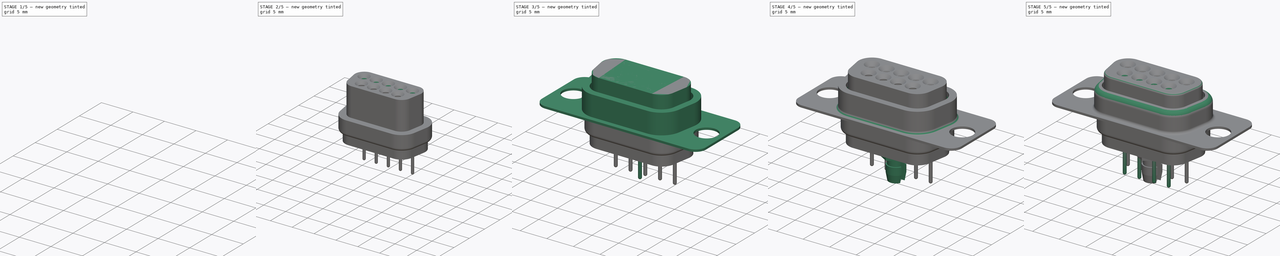
[diagram: build sequence overview — one tinted view per stage of 5, left to right]
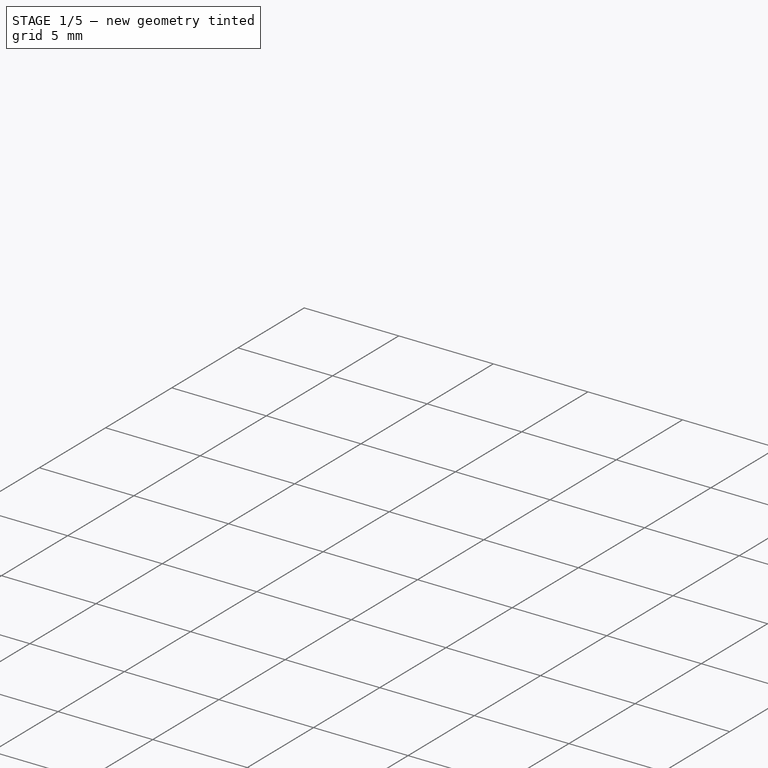
[diagram: stage 1 of 5 — iso view after this stage's code; geometry added in this stage tinted green]
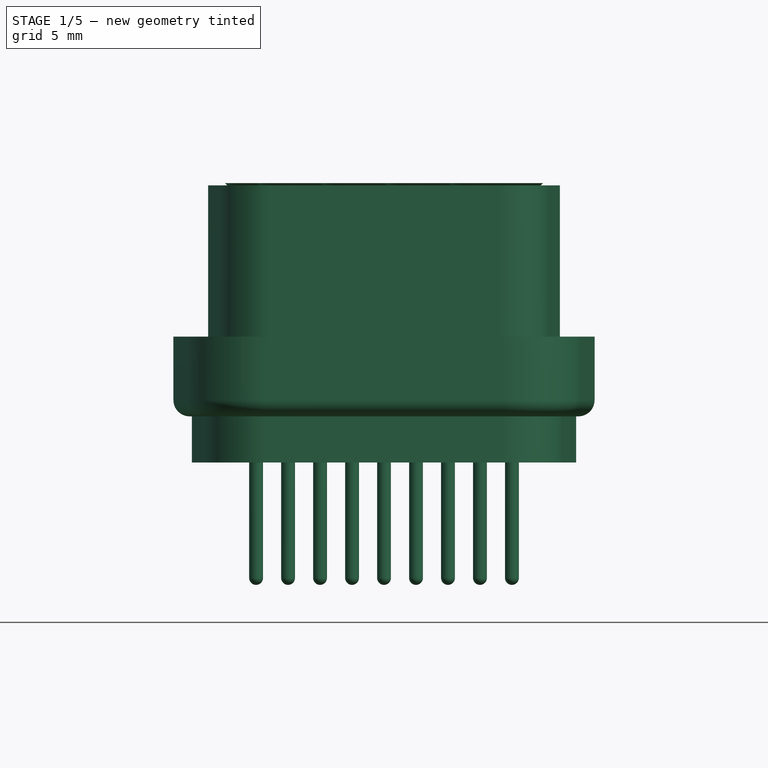
[diagram: stage 1 of 5 — front view after this stage's code; geometry added in this stage tinted green]
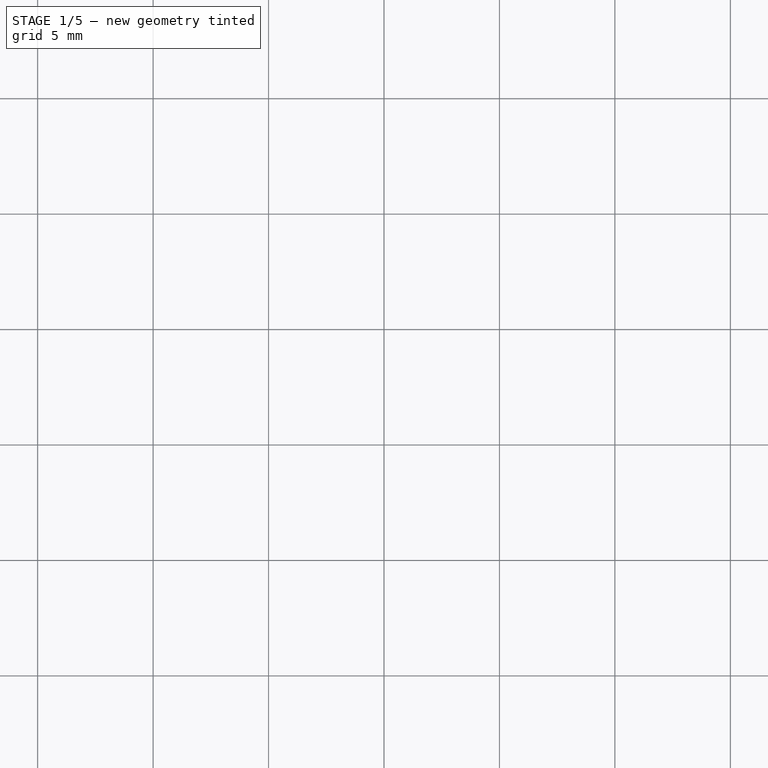
[diagram: stage 1 of 5 — top view after this stage's code; geometry added in this stage tinted green]
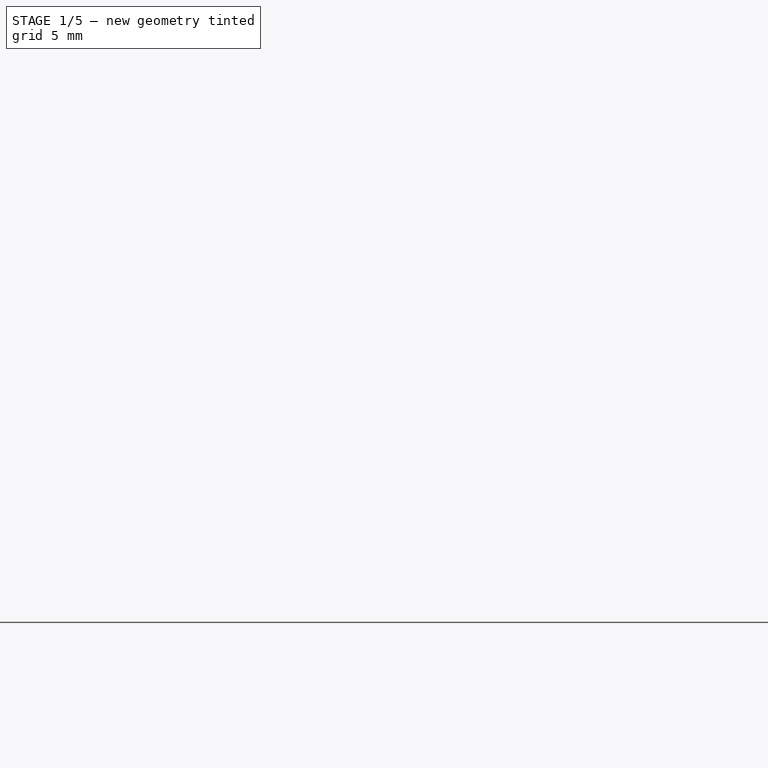
[diagram: stage 1 of 5 — right view after this stage's code; geometry added in this stage tinted green]
FCSTD DOCUMENT  (FreeCAD 1.0R39319 (Git))
Label: DB 9 Female
License: All rights reserved
LicenseURL: http://en.wikipedia.org/wiki/All_rights_reserved
objects: Sketcher::SketchObject×23, PartDesign::Body×13, PartDesign::Pad×9, PartDesign::Pocket×8, PartDesign::Fillet×8, PartDesign::Revolution×6, Part::FeaturePython×6, Part::MultiFuse×3, PartDesign::FeatureBase×2, PartDesign::Chamfer×1, Part::Cut×1
note: 163 computed .brp shape members not serialized (recipe doc carries the construction recipe); baked Part::Feature solids carry a one-line shape summary decoded from their .brp

FEATURE [PartDesign::Body] Body005
  AllowCompound = false
  BaseFeature = -> Body004
  Group = -> [Clone001]
  Origin = -> Origin005
  Placement = pos=(12.495,1e-16,0.9) rot=(0,0,1;0rad)
  Tip = -> Clone001
FEATURE [Sketcher::SketchObject] Sketch014
  ArcFitTolerance = 0
  AttachmentSupport = -> [XY_Plane006]
  FullyConstrained = true
  MakeInternals = false
  MapMode = 5
  sketch-geometry (10):
    g0: LineSegment StartX=-5.72 StartY=5 StartZ=0 EndX=5.72 EndY=5 EndZ=0
    g1: LineSegment StartX=9.06821 StartY=1.00883 StartZ=0 EndX=8.50321 EndY=-2.19117 EndZ=0
    g2: LineSegment StartX=5.155 StartY=-5 StartZ=0 EndX=-5.155 EndY=-5 EndZ=0
    g3: LineSegment StartX=-8.50321 StartY=-2.19117 StartZ=0 EndX=-9.06821 EndY=1.00883 EndZ=0
    g4: ArcOfCircle CenterX=-5.72 CenterY=1.6 CenterZ=0 NormalX=0 NormalY=0 NormalZ=1 AngleXU=0 Radius=3.4 StartAngle=1.5708 EndAngle=3.31635
    g5: ArcOfCircle CenterX=5.72 CenterY=1.6 CenterZ=0 NormalX=0 NormalY=0 NormalZ=1 AngleXU=0 Radius=3.4 StartAngle=6.10842 EndAngle=7.85398
    g6: ArcOfCircle CenterX=5.155 CenterY=-1.6 CenterZ=0 NormalX=0 NormalY=0 NormalZ=1 AngleXU=0 Radius=3.4 StartAngle=4.71239 EndAngle=6.10842
    g7: ArcOfCircle CenterX=-5.155 CenterY=-1.6 CenterZ=0 NormalX=0 NormalY=0 NormalZ=1 AngleXU=0 Radius=3.4 StartAngle=3.31635 EndAngle=4.71239
    g8: LineSegment [constr] StartX=-5.72 StartY=5 StartZ=0 EndX=-5.72 EndY=0 EndZ=0
    g9: LineSegment [constr] StartX=-5.155 StartY=-5 StartZ=0 EndX=-5.155 EndY=0 EndZ=0
  constraints (24):
    c: Tangent(g0,g4) = 1.5708
    c: Tangent(g3,g4) = 1.5708
    c: Tangent(g0,g5) = 1.5708
    c: Tangent(g1,g5) = 1.5708
    c: Tangent(g1,g6) = 1.5708
    c: Tangent(g2,g6) = 1.5708
    c: Tangent(g3,g7) = 1.5708
    c: Tangent(g2,g7) = 1.5708
    c: Equal(g4,g7)
    c: Equal(g7,g5)
    c: Equal(g5,g6)
    c: Symmetric(g5,g4,g-2)
    c: Symmetric(g7,g6,g-2)
    c: DistanceX(g0,g0) = 11.44
    c: DistanceX(g2,g2) = 10.31
    c: DistanceY(g2,g0) = 10
    c: Radius(g4) = 3.4
    c: Coincident(g8,g0)
    c: PointOnObject(g8,g-1)
    c: Vertical(g8)
    c: Coincident(g9,g2)
    c: PointOnObject(g9,g-1)
    c: Vertical(g9)
    c: Equal(g9,g8)
FEATURE [PartDesign::Pad] Pad004
  Direction = (0,0,1)
  Length = 3.45
  Length2 = 10
  Profile = -> Sketch014
  ReferenceAxis = -> Sketch014 [N_Axis]
  Reversed = true
  Suppressed = false
  Type = 0
FEATURE [Sketcher::SketchObject] Sketch015
  ArcFitTolerance = 0
  AttachmentSupport = -> [Pad004]
  ExternalGeometry = -> [Pad004]
  FullyConstrained = true
  MakeInternals = false
  MapMode = 5
  Placement = pos=(0,0,-3.45) rot=(1,0,0;3.14159rad)
  sketch-geometry (8):
    g0: LineSegment StartX=-5.155 StartY=4.2 StartZ=0 EndX=5.155 EndY=4.2 EndZ=0
    g1: LineSegment StartX=7.7154 StartY=2.05207 StartZ=0 EndX=8.2804 EndY=-1.14793 EndZ=0
    g2: LineSegment StartX=5.72 StartY=-4.2 StartZ=0 EndX=-5.72 EndY=-4.2 EndZ=0
    g3: LineSegment StartX=-8.2804 StartY=-1.14793 StartZ=0 EndX=-7.7154 EndY=2.05207 EndZ=0
    g4: ArcOfCircle CenterX=-5.155 CenterY=1.6 CenterZ=0 NormalX=0 NormalY=0 NormalZ=1 AngleXU=0 Radius=2.6 StartAngle=1.5708 EndAngle=2.96683
    g5: ArcOfCircle CenterX=-5.72 CenterY=-1.6 CenterZ=0 NormalX=0 NormalY=0 NormalZ=1 AngleXU=0 Radius=2.6 StartAngle=2.96683 EndAngle=4.71239
    g6: ArcOfCircle CenterX=5.72 CenterY=-1.6 CenterZ=0 NormalX=0 NormalY=0 NormalZ=1 AngleXU=0 Radius=2.6 StartAngle=4.71239 EndAngle=6.45795
    g7: ArcOfCircle CenterX=5.155 CenterY=1.6 CenterZ=0 NormalX=0 NormalY=0 NormalZ=1 AngleXU=0 Radius=2.6 StartAngle=0.174761 EndAngle=1.5708
  constraints (16):
    c: Tangent(g0,g4) = 1.5708
    c: Tangent(g3,g4) = 1.5708
    c: Tangent(g3,g5) = 1.5708
    c: Tangent(g2,g5) = 1.5708
    c: Tangent(g2,g6) = 1.5708
    c: Tangent(g1,g6) = 1.5708
    c: Tangent(g1,g7) = 1.5708
    c: Tangent(g0,g7) = 1.5708
    c: Equal(g4,g5)
    c: Equal(g5,g6)
    c: Equal(g6,g7)
    c: Coincident(g4,g-3)
    c: Coincident(g7,g-5)
    c: Coincident(g-4,g5)
    c: Coincident(g6,g-6)
    c: DistanceY(g0,g-5) = 0.8
FEATURE [PartDesign::Pad] Pad005
  BaseFeature = -> Pad004
  Direction = (0,0,-1)
  Length = 2
  Length2 = 10
  Profile = -> Sketch015
  ReferenceAxis = -> Sketch015 [N_Axis]
  Suppressed = false
  Type = 0
FEATURE [PartDesign::Fillet] Fillet007
  Base = -> Pad005 [Edge4]
  BaseFeature = -> Pad005
  Radius = 0.7
  SupportTransform = false
  Suppressed = false
  UseAllEdges = false
FEATURE [Sketcher::SketchObject] Sketch022
  ArcFitTolerance = 0
  AttachmentSupport = -> [Fillet007]
  FullyConstrained = true
  MakeInternals = false
  MapMode = 5
  sketch-geometry (10):
    g0: LineSegment StartX=-5.475 StartY=3.535 StartZ=0 EndX=5.475 EndY=3.535 EndZ=0
    g1: LineSegment StartX=7.58744 StartY=1.01766 StartZ=0 EndX=7.09744 EndY=-1.76234 EndZ=0
    g2: LineSegment StartX=4.985 StartY=-3.535 StartZ=0 EndX=-4.985 EndY=-3.535 EndZ=0
    g3: LineSegment StartX=-7.09744 StartY=-1.76234 StartZ=0 EndX=-7.58744 EndY=1.01766 EndZ=0
    g4: ArcOfCircle CenterX=-5.475 CenterY=1.39 CenterZ=0 NormalX=0 NormalY=0 NormalZ=1 AngleXU=0 Radius=2.145 StartAngle=1.5708 EndAngle=3.31606
    g5: ArcOfCircle CenterX=-4.985 CenterY=-1.39 CenterZ=0 NormalX=0 NormalY=0 NormalZ=1 AngleXU=0 Radius=2.145 StartAngle=3.31606 EndAngle=4.71239
    g6: ArcOfCircle CenterX=4.985 CenterY=-1.39 CenterZ=0 NormalX=0 NormalY=0 NormalZ=1 AngleXU=0 Radius=2.145 StartAngle=4.71239 EndAngle=6.10872
    g7: ArcOfCircle CenterX=5.475 CenterY=1.39 CenterZ=0 NormalX=0 NormalY=0 NormalZ=1 AngleXU=0 Radius=2.145 StartAngle=6.10872 EndAngle=7.85398
    g8: LineSegment [constr] StartX=-5.475 StartY=3.535 StartZ=0 EndX=-5.475 EndY=0 EndZ=0
    g9: LineSegment [constr] StartX=-4.985 StartY=-3.535 StartZ=0 EndX=-4.985 EndY=0 EndZ=0
  constraints (24):
    c: Tangent(g0,g4) = 1.5708
    c: Tangent(g3,g4) = 1.5708
    c: Tangent(g3,g5) = 1.5708
    c: Tangent(g2,g5) = 1.5708
    c: Tangent(g2,g6) = 1.5708
    c: Tangent(g1,g6) = 1.5708
    c: Tangent(g1,g7) = 1.5708
    c: Tangent(g0,g7) = 1.5708
    c: Equal(g4,g7)
    c: Equal(g7,g6)
    c: Equal(g6,g5)
    c: Coincident(g8,g0)
    c: PointOnObject(g8,g-1)
    c: Vertical(g8)
    c: Coincident(g9,g2)
    c: PointOnObject(g9,g-1)
    c: Vertical(g9)
    c: Equal(g8,g9)
    c: Symmetric(g4,g7,g-2)
    c: Symmetric(g5,g6,g-2)
    c: DistanceX(g2,g2) = 9.97
    c: DistanceX(g0,g0) = 10.95
    c: DistanceY(g2,g0) = 7.07
    c: Radius(g4) = 2.145
FEATURE [PartDesign::Pad] Pad008
  BaseFeature = -> Fillet007
  Direction = (0,0,1)
  Length = 6.55
  Length2 = 10
  Profile = -> Sketch022
  ReferenceAxis = -> Sketch022 [N_Axis]
  Suppressed = false
  Type = 0
FEATURE [Sketcher::SketchObject] Sketch024
  ArcFitTolerance = 0
  AttachmentSupport = -> [XZ_Plane014]
  FullyConstrained = true
  MakeInternals = false
  MapMode = 5
  Placement = pos=(0,0,0) rot=(1,0,0;1.5708rad)
  sketch-geometry (7):
    g0: LineSegment StartX=0 StartY=6.65 StartZ=0 EndX=-1e-16 EndY=-10.75 EndZ=0
    g1: LineSegment StartX=0.3 StartY=-10.45 StartZ=0 EndX=0.3 EndY=-2 EndZ=0
    g2: LineSegment StartX=0.3 StartY=-2 StartZ=0 EndX=0.65 EndY=-2 EndZ=0
    g3: LineSegment StartX=0.65 StartY=-2 StartZ=0 EndX=0.65 EndY=5.95 EndZ=0
    g4: ArcOfCircle CenterX=0 CenterY=-10.45 CenterZ=0 NormalX=0 NormalY=0 NormalZ=1 AngleXU=0 Radius=0.3 StartAngle=4.71239 EndAngle=6.28319
    g5: LineSegment StartX=0.65 StartY=5.95 StartZ=0 EndX=1.35 EndY=6.65 EndZ=0
    g6: LineSegment StartX=1.35 StartY=6.65 StartZ=0 EndX=0 EndY=6.65 EndZ=0
  constraints (21):
    c: PointOnObject(g0,g-2)
    c: Vertical(g1)
    c: Coincident(g1,g2)
    c: Coincident(g2,g3)
    c: Vertical(g3)
    c: PointOnObject(g4,g0)
    c: Coincident(g4,g0)
    c: Tangent(g1,g4) = -1.5708
    c: Horizontal(g2)
    c: DistanceY(g0,g-1) = 10.75
    c: DistanceY(g2,g-1) = 2
    c: DistanceX(g0,g1) = 0.3
    c: DistanceX(g-1,g3) = 0.65
    c: DistanceY(g-1,g3) = 5.95
    c: Coincident(g3,g5)
    c: Coincident(g5,g6)
    c: Horizontal(g6)
    c: Coincident(g0,g6)
    c: PointOnObject(g0,g-2)
    c: Angle(g6,g5) = 0.785398
    c: DistanceY(g3,g0) = 0.7
FEATURE [PartDesign::Revolution] Revolution007
  Angle = 360
  Angle2 = 60
  Axis = (0,2e-16,1)
  Base = (0,0,0)
  Placement = pos=(0,0,0) rot=(1,0,0;1.5708rad)
  Profile = -> Sketch024
  ReferenceAxis = -> Sketch024 [V_Axis]
  Reversed = true
  Suppressed = false
  Type = 0
FEATURE [PartDesign::Body] Body014
  AllowCompound = false
  Group = -> [Sketch024,Revolution007]
  Origin = -> Origin014
  Placement = pos=(-4.155,-1.42,0) rot=(0,0,1;0rad)
  Tip = -> Revolution007
FEATURE [Sketcher::SketchObject] Sketch025
  ArcFitTolerance = 0
  AttachmentSupport = -> [XZ_Plane015]
  FullyConstrained = true
  MakeInternals = false
  MapMode = 5
  Placement = pos=(0,0,0) rot=(1,0,0;1.5708rad)
  sketch-geometry (7):
    g0: LineSegment StartX=0 StartY=6.65 StartZ=0 EndX=-1e-16 EndY=-10.75 EndZ=0
    g1: LineSegment StartX=0.3 StartY=-10.45 StartZ=0 EndX=0.3 EndY=-2 EndZ=0
    g2: LineSegment StartX=0.3 StartY=-2 StartZ=0 EndX=0.65 EndY=-2 EndZ=0
    g3: LineSegment StartX=0.65 StartY=-2 StartZ=0 EndX=0.65 EndY=5.95 EndZ=0
    g4: ArcOfCircle CenterX=0 CenterY=-10.45 CenterZ=0 NormalX=0 NormalY=0 NormalZ=1 AngleXU=0 Radius=0.3 StartAngle=4.71239 EndAngle=6.28319
    g5: LineSegment StartX=0.65 StartY=5.95 StartZ=0 EndX=1.35 EndY=6.65 EndZ=0
    g6: LineSegment StartX=1.35 StartY=6.65 StartZ=0 EndX=0 EndY=6.65 EndZ=0
  constraints (21):
    c: PointOnObject(g0,g-2)
    c: Vertical(g1)
    c: Coincident(g1,g2)
    c: Coincident(g2,g3)
    c: Vertical(g3)
    c: PointOnObject(g4,g0)
    c: Coincident(g4,g0)
    c: Tangent(g1,g4) = -1.5708
    c: Horizontal(g2)
    c: DistanceY(g0,g-1) = 10.75
    c: DistanceY(g2,g-1) = 2
    c: DistanceX(g0,g1) = 0.3
    c: DistanceX(g-1,g3) = 0.65
    c: DistanceY(g-1,g3) = 5.95
    c: Coincident(g3,g5)
    c: Coincident(g5,g6)
    c: Horizontal(g6)
    c: Coincident(g0,g6)
    c: PointOnObject(g0,g-2)
    c: Angle(g6,g5) = 0.785398
    c: DistanceY(g3,g0) = 0.7
FEATURE [PartDesign::Revolution] Revolution008
  Angle = 360
  Angle2 = 60
  Axis = (0,2e-16,1)
  Base = (0,0,0)
  Placement = pos=(0,0,0) rot=(1,0,0;1.5708rad)
  Profile = -> Sketch025
  ReferenceAxis = -> Sketch025 [V_Axis]
  Reversed = true
  Suppressed = false
  Type = 0
FEATURE [PartDesign::Body] Body015
  AllowCompound = false
  Group = -> [Sketch025,Revolution008]
  Origin = -> Origin015
  Placement = pos=(-5.54,1.42,0) rot=(0,0,1;0rad)
  Tip = -> Revolution008
FEATURE [Part::FeaturePython] Array007  # Draft array (typed FeaturePython)
  AlwaysSyncPlacement = false
  Angle = 360
  ArrayType = 0
  Axis = (0,0,1)
  Base = -> Body014
  Center = (0,0,0)
  Count = 8
  ExpandArray = false
  Fuse = false
  IntervalAxis = (0,0,0)
  IntervalX = (2.77,0,0)
  IntervalY = (0,100,0)
  IntervalZ = (0,0,100)
  NumberCircles = 3
  NumberPolar = 5
  NumberX = 4
  NumberY = 2
  NumberZ = 1
  PlacementList = 8 placements: [(-4.155,-1.42,0),(-4.155,98.58,0),(-1.385,-1.42,0),(-1.385,98.58,0),(1.385,-1.42,0),(1.385,98.58,0),(4.155,-1.42,0),(4.155,98.58,0)]
  RadialDistance = 50
  ScaleList = (8) [(1,1,1),(1,1,1),(1,1,1),(1,1,1),(1,1,1),(1,1,1),(1,1,1),(1,1,1)]
  Symmetry = 1
  TangentialDistance = 25
FEATURE [Part::FeaturePython] Array008  # Draft array (typed FeaturePython)
  AlwaysSyncPlacement = false
  Angle = 360
  ArrayType = 0
  Axis = (0,0,1)
  Base = -> Body015
  Center = (0,0,0)
  Count = 5
  ExpandArray = false
  Fuse = false
  IntervalAxis = (0,0,0)
  IntervalX = (2.77,0,0)
  IntervalY = (0,100,0)
  IntervalZ = (0,0,100)
  NumberCircles = 3
  NumberPolar = 5
  NumberX = 5
  NumberY = 1
  NumberZ = 1
  PlacementList = 5 placements: arithmetic series from (-5.54,1.42,0) step (2.77,0,0) to (5.54,1.42,0)
  RadialDistance = 50
  ScaleList = (5) [(1,1,1),(1,1,1),(1,1,1),(1,1,1),(1,1,1)]
  Symmetry = 1
  TangentialDistance = 25
FEATURE [Part::MultiFuse] Fusion003
  Shapes = -> [Array007,Array008]
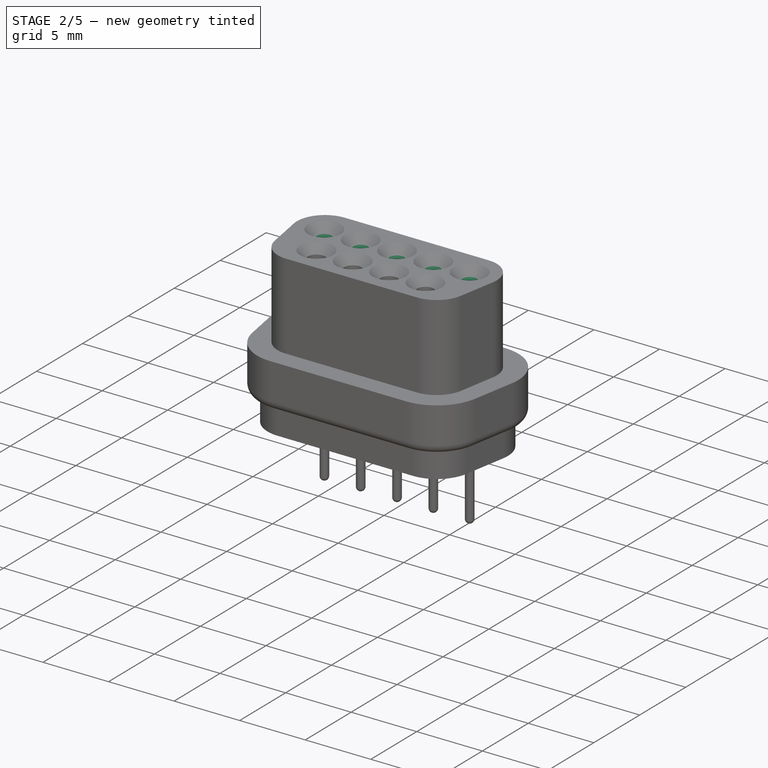
[diagram: stage 2 of 5 — iso view after this stage's code; geometry added in this stage tinted green]
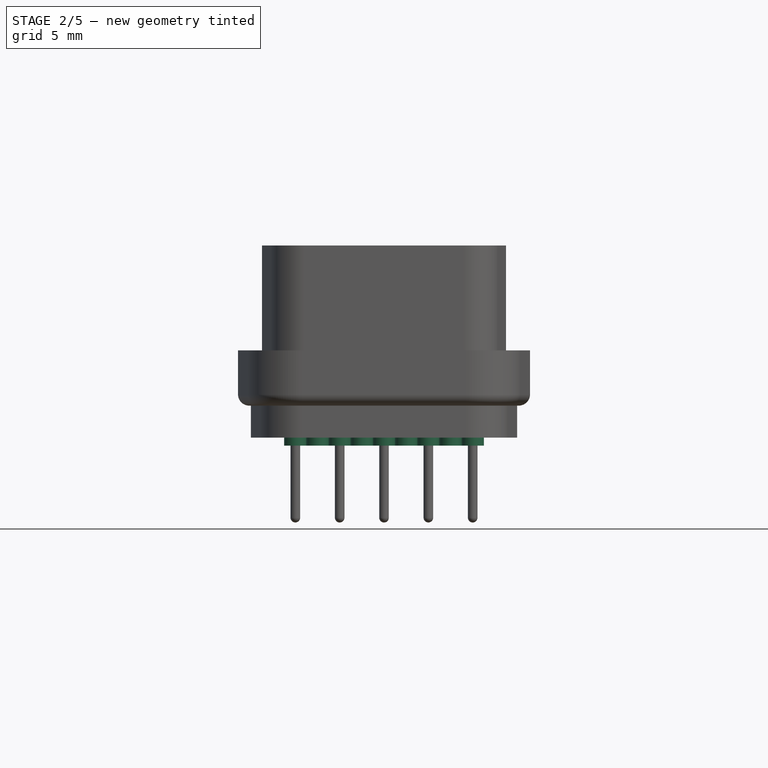
[diagram: stage 2 of 5 — front view after this stage's code; geometry added in this stage tinted green]
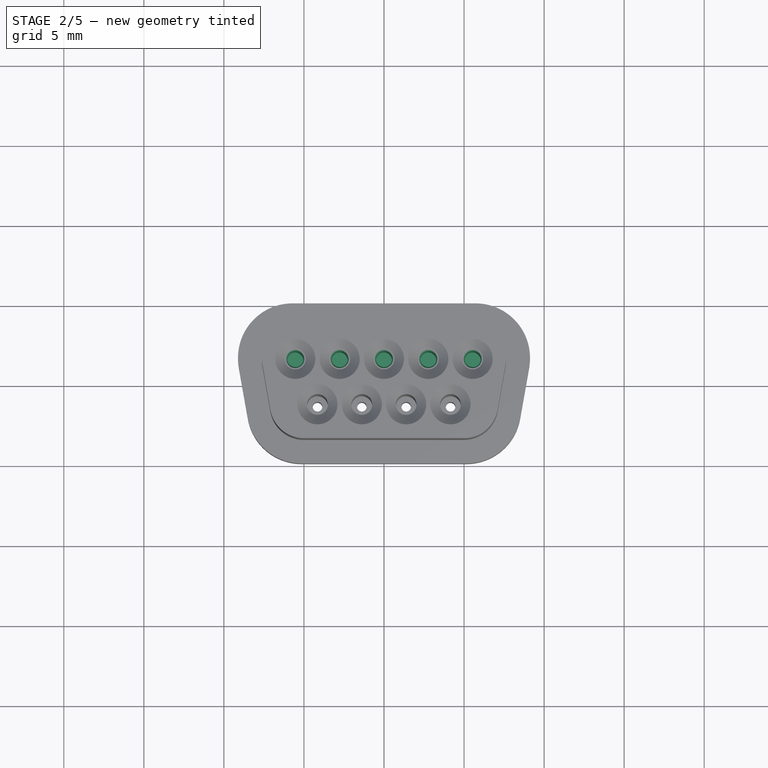
[diagram: stage 2 of 5 — top view after this stage's code; geometry added in this stage tinted green]
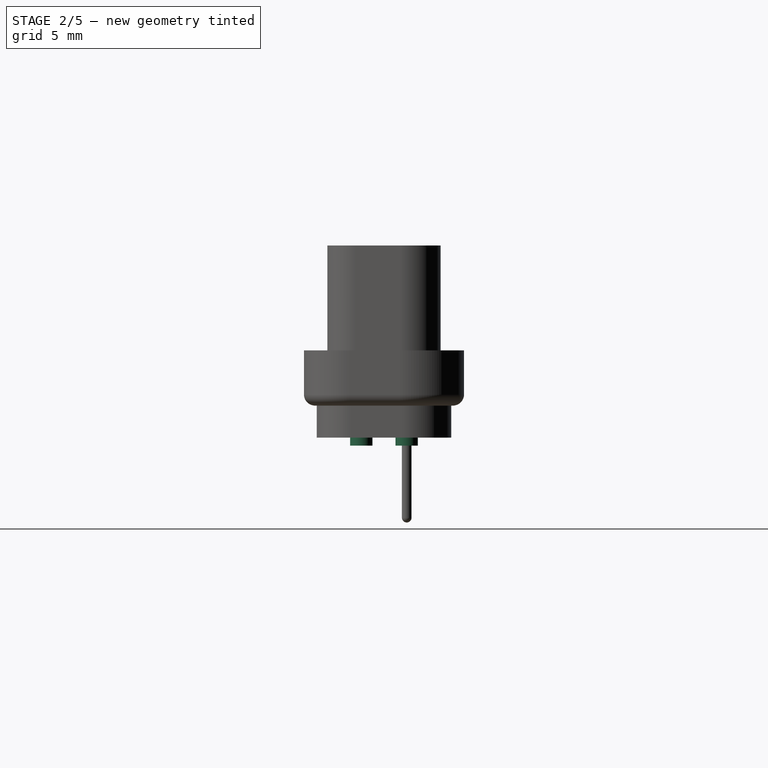
[diagram: stage 2 of 5 — right view after this stage's code; geometry added in this stage tinted green]
FEATURE [Sketcher::SketchObject] Sketch016
  ArcFitTolerance = 0
  AttachmentSupport = -> [XY_Plane007]
  FullyConstrained = true
  MakeInternals = false
  MapMode = 5
  sketch-geometry (1):
    g0: Circle CenterX=0 CenterY=0 CenterZ=0 NormalX=0 NormalY=0 NormalZ=1 AngleXU=0 Radius=0.7
  constraints (2):
    c: Coincident(g0,g-1)
    c: Diameter(g0) = 1.4
FEATURE [PartDesign::Pad] Pad006
  Direction = (0,0,1)
  Length = 0.5
  Length2 = 10
  Profile = -> Sketch016
  ReferenceAxis = -> Sketch016 [N_Axis]
  Reversed = true
  Suppressed = false
  Type = 0
FEATURE [PartDesign::Body] Body007
  AllowCompound = false
  Group = -> [Sketch016,Pad006]
  Origin = -> Origin007
  Placement = pos=(-5.54,1.42,-5.45) rot=(0,0,1;0rad)
  Tip = -> Pad006
FEATURE [Part::FeaturePython] Array  # Draft array (typed FeaturePython)
  AlwaysSyncPlacement = false
  Angle = 360
  ArrayType = 0
  Axis = (0,0,1)
  Base = -> Body007
  Center = (0,0,0)
  Count = 5
  ExpandArray = false
  Fuse = false
  IntervalAxis = (0,0,0)
  IntervalX = (2.77,0,0)
  IntervalY = (0,100,0)
  IntervalZ = (0,0,100)
  NumberCircles = 3
  NumberPolar = 5
  NumberX = 5
  NumberY = 1
  NumberZ = 1
  PlacementList = 5 placements: arithmetic series from (-5.54,1.42,-5.45) step (2.77,0,0) to (5.54,1.42,-5.45)
  RadialDistance = 50
  ScaleList = (5) [(1,1,1),(1,1,1),(1,1,1),(1,1,1),(1,1,1)]
  Symmetry = 1
  TangentialDistance = 25
FEATURE [Sketcher::SketchObject] Sketch017
  ArcFitTolerance = 0
  AttachmentSupport = -> [XY_Plane008]
  FullyConstrained = true
  MakeInternals = false
  MapMode = 5
  sketch-geometry (1):
    g0: Circle CenterX=0 CenterY=0 CenterZ=0 NormalX=0 NormalY=0 NormalZ=1 AngleXU=0 Radius=0.7
  constraints (2):
    c: Coincident(g0,g-1)
    c: Diameter(g0) = 1.4
FEATURE [PartDesign::Pad] Pad007
  Direction = (0,0,1)
  Length = 0.5
  Length2 = 10
  Profile = -> Sketch017
  ReferenceAxis = -> Sketch017 [N_Axis]
  Reversed = true
  Suppressed = false
  Type = 0
FEATURE [PartDesign::Body] Body008
  AllowCompound = false
  Group = -> [Sketch017,Pad007]
  Origin = -> Origin008
  Placement = pos=(-4.155,-1.42,-5.45) rot=(0,0,1;0rad)
  Tip = -> Pad007
FEATURE [Part::FeaturePython] Array001  # Draft array (typed FeaturePython)
  AlwaysSyncPlacement = false
  Angle = 360
  ArrayType = 0
  Axis = (0,0,1)
  Base = -> Body008
  Center = (0,0,0)
  Count = 4
  ExpandArray = false
  Fuse = false
  IntervalAxis = (0,0,0)
  IntervalX = (2.77,0,0)
  IntervalY = (0,100,0)
  IntervalZ = (0,0,100)
  NumberCircles = 3
  NumberPolar = 5
  NumberX = 4
  NumberY = 1
  NumberZ = 1
  PlacementList = 4 placements: arithmetic series from (-4.155,-1.42,-5.45) step (2.77,0,0) to (4.155,-1.42,-5.45)
  RadialDistance = 50
  ScaleList = (4) [(1,1,1),(1,1,1),(1,1,1),(1,1,1)]
  Symmetry = 1
  TangentialDistance = 25
FEATURE [Part::MultiFuse] Fusion
  Shapes = -> [Array001,Array]
FEATURE [PartDesign::Body] Body006
  AllowCompound = false
  Group = -> [Sketch014,Pad004,Sketch015,Pad005,Fillet007,Sketch022,Pad008]
  Origin = -> Origin006
  Tip = -> Pad008
FEATURE [Part::MultiFuse] Fusion002
  Shapes = -> [Fusion,Body006]
FEATURE [Sketcher::SketchObject] Sketch023
  ArcFitTolerance = 0
  AttachmentSupport = -> [XZ_Plane013]
  FullyConstrained = true
  MakeInternals = false
  MapMode = 5
  Placement = pos=(0,0,0) rot=(1,0,0;1.5708rad)
  sketch-geometry (9):
    g0: LineSegment StartX=0 StartY=0.7 StartZ=0 EndX=-1e-16 EndY=-10.75 EndZ=0
    g1: LineSegment StartX=0.3 StartY=-10.45 StartZ=0 EndX=0.3 EndY=-2 EndZ=0
    g2: LineSegment StartX=0.3 StartY=-2 StartZ=0 EndX=0.65 EndY=-2 EndZ=0
    g3: LineSegment StartX=0.65 StartY=-2 StartZ=0 EndX=0.65 EndY=5.95 EndZ=0
    g4: ArcOfCircle CenterX=0 CenterY=-10.45 CenterZ=0 NormalX=0 NormalY=0 NormalZ=1 AngleXU=0 Radius=0.3 StartAngle=4.71239 EndAngle=6.28319
    g5: LineSegment StartX=0 StartY=0.7 StartZ=0 EndX=0.5 EndY=0.7 EndZ=0
    g6: LineSegment StartX=0.5 StartY=0.7 StartZ=0 EndX=0.5 EndY=5.8 EndZ=0
    g7: LineSegment StartX=0.5 StartY=5.8 StartZ=0 EndX=0.565 EndY=5.95 EndZ=0
    g8: LineSegment StartX=0.565 StartY=5.95 StartZ=0 EndX=0.65 EndY=5.95 EndZ=0
  constraints (27):
    c: PointOnObject(g0,g-2)
    c: PointOnObject(g0,g-2)
    c: Vertical(g1)
    c: Coincident(g1,g2)
    c: Coincident(g2,g3)
    c: Vertical(g3)
    c: PointOnObject(g4,g0)
    c: Coincident(g4,g0)
    c: Tangent(g1,g4) = -1.5708
    c: Horizontal(g2)
    c: DistanceY(g0,g-1) = 10.75
    c: DistanceY(g2,g-1) = 2
    c: DistanceX(g0,g1) = 0.3
    c: Coincident(g0,g5)
    c: Horizontal(g5)
    c: Coincident(g5,g6)
    c: Vertical(g6)
    c: Coincident(g6,g7)
    c: Coincident(g7,g8)
    c: Coincident(g8,g3)
    c: Horizontal(g8)
    c: DistanceX(g-1,g6) = 0.5
    c: DistanceX(g-1,g3) = 0.65
    c: DistanceY(g-1,g3) = 5.95
    c: DistanceY(g5,g3) = 5.25
    c: DistanceY(g6,g3) = 0.15
    c: DistanceX(g7,g7) = 0.065
FEATURE [PartDesign::Revolution] Revolution006
  Angle = 360
  Angle2 = 60
  Axis = (0,2e-16,1)
  Base = (0,0,0)
  Placement = pos=(0,0,0) rot=(1,0,0;1.5708rad)
  Profile = -> Sketch023
  ReferenceAxis = -> Sketch023 [V_Axis]
  Reversed = true
  Suppressed = false
  Type = 0
FEATURE [PartDesign::Body] Body013
  AllowCompound = false
  Group = -> [Sketch023,Revolution006]
  Origin = -> Origin013
  Placement = pos=(-5.54,1.42,0) rot=(0,0,1;0rad)
  Tip = -> Revolution006
FEATURE [Part::FeaturePython] Array006  # Draft array (typed FeaturePython)
  AlwaysSyncPlacement = false
  Angle = 360
  ArrayType = 0
  Axis = (0,0,1)
  Base = -> Body013
  Center = (0,0,0)
  Count = 5
  ExpandArray = false
  Fuse = false
  IntervalAxis = (0,0,0)
  IntervalX = (2.77,0,0)
  IntervalY = (0,100,0)
  IntervalZ = (0,0,100)
  NumberCircles = 3
  NumberPolar = 5
  NumberX = 5
  NumberY = 1
  NumberZ = 1
  PlacementList = 5 placements: arithmetic series from (-5.54,1.42,0) step (2.77,0,0) to (5.54,1.42,0)
  RadialDistance = 50
  ScaleList = (5) [(1,1,1),(1,1,1),(1,1,1),(1,1,1),(1,1,1)]
  Symmetry = 1
  TangentialDistance = 25
FEATURE [Part::Cut] Cut
  Base = -> Fusion002
  Tool = -> Fusion003
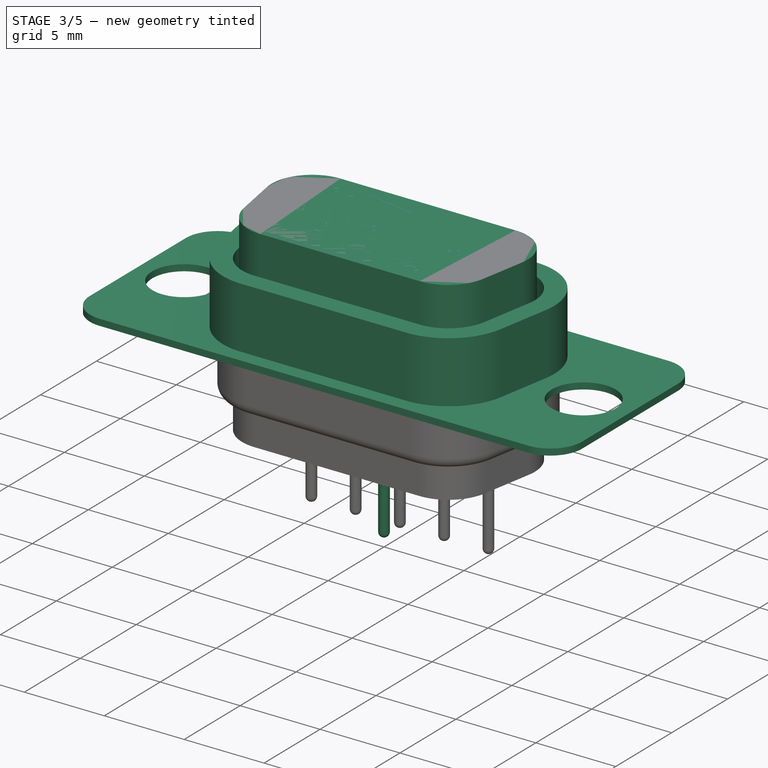
[diagram: stage 3 of 5 — iso view after this stage's code; geometry added in this stage tinted green]
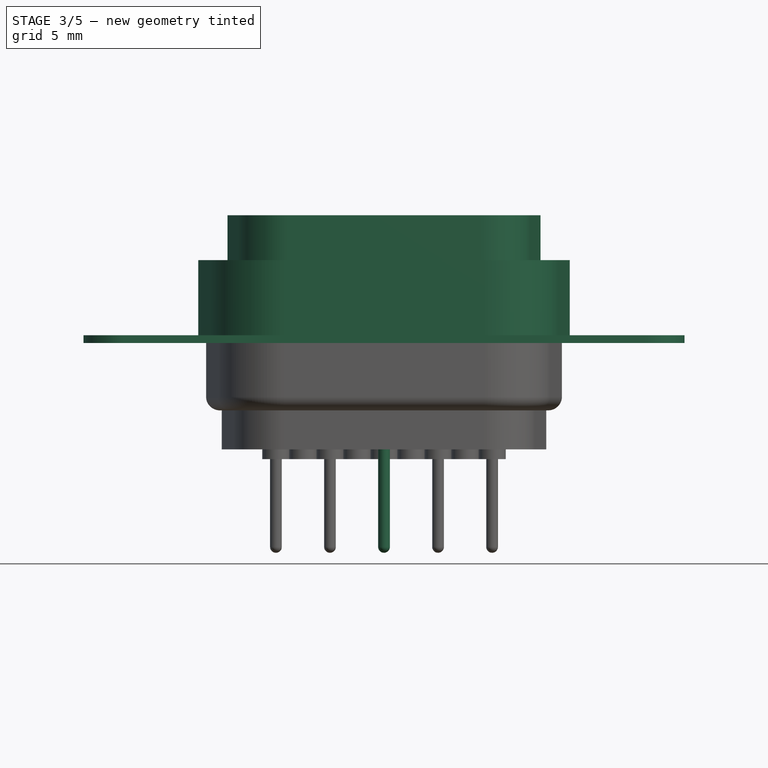
[diagram: stage 3 of 5 — front view after this stage's code; geometry added in this stage tinted green]
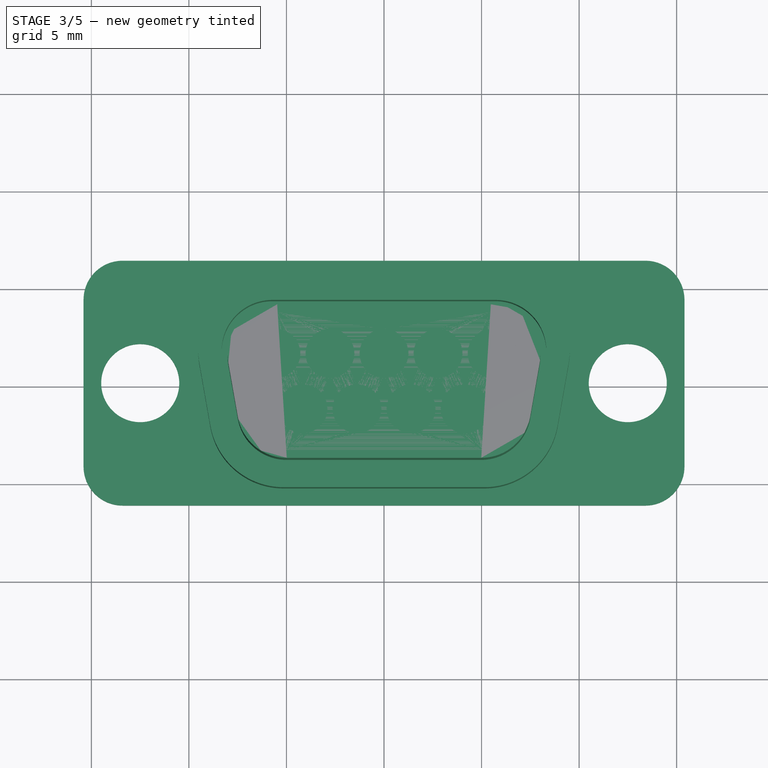
[diagram: stage 3 of 5 — top view after this stage's code; geometry added in this stage tinted green]
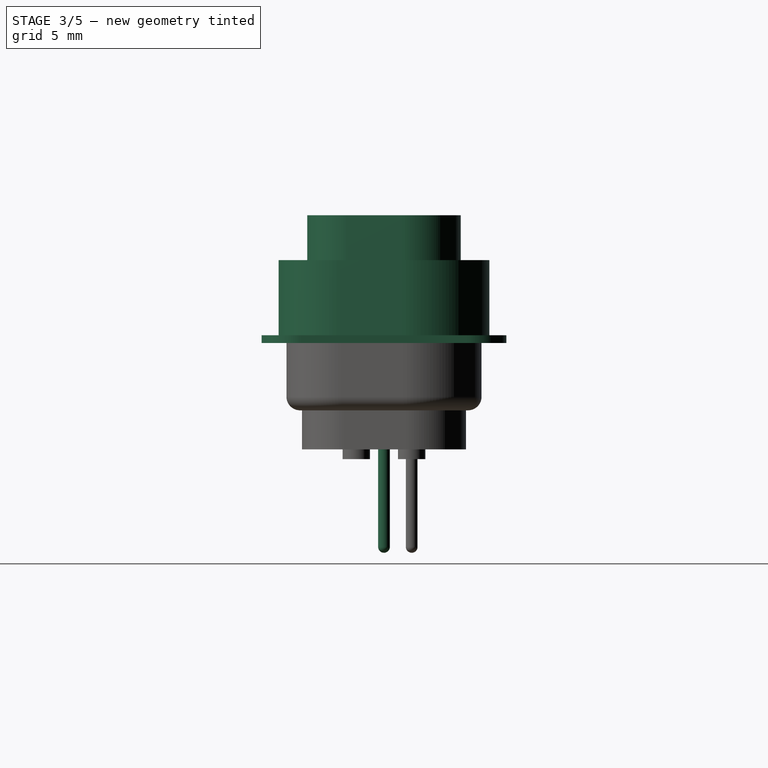
[diagram: stage 3 of 5 — right view after this stage's code; geometry added in this stage tinted green]
FEATURE [Sketcher::SketchObject] Sketch
  ArcFitTolerance = 0
  AttachmentSupport = -> [XY_Plane]
  FullyConstrained = true
  MakeInternals = false
  MapMode = 5
  sketch-geometry (8):
    g0: LineSegment StartX=-13.4 StartY=6.275 StartZ=0 EndX=13.4 EndY=6.275 EndZ=0
    g1: LineSegment StartX=15.4 StartY=4.275 StartZ=0 EndX=15.4 EndY=-4.275 EndZ=0
    g2: LineSegment StartX=13.4 StartY=-6.275 StartZ=0 EndX=-13.4 EndY=-6.275 EndZ=0
    g3: LineSegment StartX=-15.4 StartY=-4.275 StartZ=0 EndX=-15.4 EndY=4.275 EndZ=0
    g4: ArcOfCircle CenterX=-13.4 CenterY=4.275 CenterZ=0 NormalX=0 NormalY=0 NormalZ=1 AngleXU=0 Radius=2 StartAngle=1.5708 EndAngle=3.14159
    g5: ArcOfCircle CenterX=-13.4 CenterY=-4.275 CenterZ=0 NormalX=0 NormalY=0 NormalZ=1 AngleXU=0 Radius=2 StartAngle=3.14159 EndAngle=4.71239
    g6: ArcOfCircle CenterX=13.4 CenterY=4.275 CenterZ=0 NormalX=0 NormalY=0 NormalZ=1 AngleXU=0 Radius=2 StartAngle=1e-16 EndAngle=1.5708
    g7: ArcOfCircle CenterX=13.4 CenterY=-4.275 CenterZ=0 NormalX=0 NormalY=0 NormalZ=1 AngleXU=0 Radius=2 StartAngle=4.71239 EndAngle=6.28319
  constraints (19):
    c: Horizontal(g0)
    c: Horizontal(g2)
    c: Vertical(g1)
    c: Vertical(g3)
    c: Tangent(g0,g4) = 1.5708
    c: Tangent(g3,g4) = 1.5708
    c: Tangent(g3,g5) = 1.5708
    c: Tangent(g2,g5) = 1.5708
    c: Tangent(g0,g6) = 1.5708
    c: Tangent(g1,g6) = 1.5708
    c: Tangent(g1,g7) = 1.5708
    c: Tangent(g2,g7) = 1.5708
    c: Equal(g7,g6)
    c: Equal(g6,g4)
    c: Equal(g4,g5)
    c: Symmetric(g4,g7,g-1)
    c: Radius(g4) = 2
    c: DistanceY(g2,g0) = 12.55
    c: DistanceX(g3,g1) = 30.8
FEATURE [PartDesign::Pad] Pad
  Direction = (0,0,1)
  Length = 0.4
  Length2 = 10
  Profile = -> Sketch
  ReferenceAxis = -> Sketch [N_Axis]
  Suppressed = false
  Type = 0
FEATURE [Sketcher::SketchObject] Sketch001
  ArcFitTolerance = 0
  AttachmentSupport = -> [Pad]
  FullyConstrained = true
  MakeInternals = false
  MapMode = 5
  Placement = pos=(0,0,0.4) rot=(0,0,1;0rad)
  sketch-geometry (2):
    g0: Circle CenterX=-12.495 CenterY=0 CenterZ=0 NormalX=0 NormalY=0 NormalZ=1 AngleXU=0 Radius=2
    g1: Circle CenterX=12.495 CenterY=0 CenterZ=0 NormalX=0 NormalY=0 NormalZ=1 AngleXU=0 Radius=2
  constraints (5):
    c: PointOnObject(g0,g-1)
    c: Symmetric(g1,g0,g-2)
    c: Equal(g1,g0)
    c: DistanceX(g0,g1) = 24.99
    c: Diameter(g0) = 4
FEATURE [PartDesign::Pocket] Pocket
  BaseFeature = -> Pad
  Direction = (0,0,-1)
  Length = 5
  Length2 = 5
  Profile = -> Sketch001
  ReferenceAxis = -> Sketch001 [N_Axis]
  Suppressed = false
  Type = 0
FEATURE [Sketcher::SketchObject] Sketch002
  ArcFitTolerance = 0
  AttachmentSupport = -> [Pocket]
  FullyConstrained = true
  MakeInternals = false
  MapMode = 5
  Placement = pos=(0,0,0.4) rot=(0,0,1;0rad)
  sketch-geometry (10):
    g0: LineSegment StartX=-5.475 StartY=3.935 StartZ=0 EndX=5.475 EndY=3.935 EndZ=0
    g1: LineSegment StartX=7.98136 StartY=0.948231 StartZ=0 EndX=7.49136 EndY=-1.83177 EndZ=0
    g2: LineSegment StartX=4.985 StartY=-3.935 StartZ=0 EndX=-4.985 EndY=-3.935 EndZ=0
    g3: LineSegment StartX=-7.49136 StartY=-1.83177 StartZ=0 EndX=-7.98136 EndY=0.948231 EndZ=0
    g4: ArcOfCircle CenterX=-5.475 CenterY=1.39 CenterZ=0 NormalX=0 NormalY=0 NormalZ=1 AngleXU=0 Radius=2.545 StartAngle=1.5708 EndAngle=3.31606
    g5: ArcOfCircle CenterX=-4.985 CenterY=-1.39 CenterZ=0 NormalX=0 NormalY=0 NormalZ=1 AngleXU=0 Radius=2.545 StartAngle=3.31606 EndAngle=4.71239
    g6: ArcOfCircle CenterX=4.985 CenterY=-1.39 CenterZ=0 NormalX=0 NormalY=0 NormalZ=1 AngleXU=0 Radius=2.545 StartAngle=4.71239 EndAngle=6.10872
    g7: ArcOfCircle CenterX=5.475 CenterY=1.39 CenterZ=0 NormalX=0 NormalY=0 NormalZ=1 AngleXU=0 Radius=2.545 StartAngle=6.10872 EndAngle=7.85398
    g8: LineSegment [constr] StartX=-5.475 StartY=3.935 StartZ=0 EndX=-5.475 EndY=0 EndZ=0
    g9: LineSegment [constr] StartX=-4.985 StartY=-3.935 StartZ=0 EndX=-4.985 EndY=0 EndZ=0
  constraints (24):
    c: Tangent(g0,g4) = 1.5708
    c: Tangent(g3,g4) = 1.5708
    c: Tangent(g3,g5) = 1.5708
    c: Tangent(g2,g5) = 1.5708
    c: Tangent(g2,g6) = 1.5708
    c: Tangent(g1,g6) = 1.5708
    c: Tangent(g1,g7) = 1.5708
    c: Tangent(g0,g7) = 1.5708
    c: Symmetric(g4,g7,g-2)
    c: Equal(g4,g5)
    c: Equal(g5,g7)
    c: Equal(g7,g6)
    c: Symmetric(g5,g6,g-2)
    c: Coincident(g8,g0)
    c: PointOnObject(g8,g-1)
    c: Vertical(g8)
    c: Coincident(g9,g2)
    c: PointOnObject(g9,g-1)
    c: Vertical(g9)
    c: Equal(g9,g8)
    c: DistanceY(g2,g0) = 7.87
    c: DistanceX(g0,g0) = 10.95
    c: DistanceX(g2,g2) = 9.97
    c: Radius(g4) = 2.545
FEATURE [PartDesign::Pad] Pad001
  BaseFeature = -> Pocket
  Direction = (0,0,1)
  Length = 6.15
  Length2 = 10
  Profile = -> Sketch002
  ReferenceAxis = -> Sketch002 [N_Axis]
  Suppressed = false
  Type = 0
FEATURE [PartDesign::Body] Body
  AllowCompound = false
  Group = -> [Sketch,Pad,Sketch001,Pocket,Sketch002,Sketch003,Pad001,Pocket001,Fillet,Fillet001,Fillet002]
  Origin = -> Origin
  Tip = -> Fillet002
FEATURE [Sketcher::SketchObject] Sketch004
  ArcFitTolerance = 0
  AttachmentSupport = -> [XY_Plane001]
  FullyConstrained = true
  MakeInternals = false
  MapMode = 5
  sketch-geometry (8):
    g0: LineSegment StartX=-13.4 StartY=6.275 StartZ=0 EndX=13.4 EndY=6.275 EndZ=0
    g1: LineSegment StartX=15.4 StartY=4.275 StartZ=0 EndX=15.4 EndY=-4.275 EndZ=0
    g2: LineSegment StartX=13.4 StartY=-6.275 StartZ=0 EndX=-13.4 EndY=-6.275 EndZ=0
    g3: LineSegment StartX=-15.4 StartY=-4.275 StartZ=0 EndX=-15.4 EndY=4.275 EndZ=0
    g4: ArcOfCircle CenterX=-13.4 CenterY=4.275 CenterZ=0 NormalX=0 NormalY=0 NormalZ=1 AngleXU=0 Radius=2 StartAngle=1.5708 EndAngle=3.14159
    g5: ArcOfCircle CenterX=-13.4 CenterY=-4.275 CenterZ=0 NormalX=0 NormalY=0 NormalZ=1 AngleXU=0 Radius=2 StartAngle=3.14159 EndAngle=4.71239
    g6: ArcOfCircle CenterX=13.4 CenterY=4.275 CenterZ=0 NormalX=0 NormalY=0 NormalZ=1 AngleXU=0 Radius=2 StartAngle=1e-16 EndAngle=1.5708
    g7: ArcOfCircle CenterX=13.4 CenterY=-4.275 CenterZ=0 NormalX=0 NormalY=0 NormalZ=1 AngleXU=0 Radius=2 StartAngle=4.71239 EndAngle=6.28319
  constraints (19):
    c: Horizontal(g0)
    c: Horizontal(g2)
    c: Vertical(g1)
    c: Vertical(g3)
    c: Tangent(g0,g4) = 1.5708
    c: Tangent(g3,g4) = 1.5708
    c: Tangent(g3,g5) = 1.5708
    c: Tangent(g2,g5) = 1.5708
    c: Tangent(g0,g6) = 1.5708
    c: Tangent(g1,g6) = 1.5708
    c: Tangent(g1,g7) = 1.5708
    c: Tangent(g2,g7) = 1.5708
    c: Equal(g7,g6)
    c: Equal(g6,g4)
    c: Equal(g4,g5)
    c: Symmetric(g4,g7,g-1)
    c: Radius(g4) = 2
    c: DistanceY(g2,g0) = 12.55
    c: DistanceX(g3,g1) = 30.8
FEATURE [PartDesign::Pad] Pad002
  Direction = (0,0,1)
  Length = 0.4
  Length2 = 10
  Profile = -> Sketch004
  ReferenceAxis = -> Sketch004 [N_Axis]
  Suppressed = false
  Type = 0
FEATURE [Sketcher::SketchObject] Sketch005
  ArcFitTolerance = 0
  AttachmentSupport = -> [Pad002]
  FullyConstrained = true
  MakeInternals = false
  MapMode = 5
  Placement = pos=(0,0,0.4) rot=(0,0,1;0rad)
  sketch-geometry (2):
    g0: Circle CenterX=-12.495 CenterY=0 CenterZ=0 NormalX=0 NormalY=0 NormalZ=1 AngleXU=0 Radius=2
    g1: Circle CenterX=12.495 CenterY=0 CenterZ=0 NormalX=0 NormalY=0 NormalZ=1 AngleXU=0 Radius=2
  constraints (5):
    c: PointOnObject(g0,g-1)
    c: Symmetric(g1,g0,g-2)
    c: Equal(g1,g0)
    c: DistanceX(g0,g1) = 24.99
    c: Diameter(g0) = 4
FEATURE [PartDesign::Pocket] Pocket002
  BaseFeature = -> Pad002
  Direction = (0,0,-1)
  Length = 5
  Length2 = 5
  Profile = -> Sketch005
  ReferenceAxis = -> Sketch005 [N_Axis]
  Suppressed = false
  Type = 0
FEATURE [Sketcher::SketchObject] Sketch006
  ArcFitTolerance = 0
  AttachmentSupport = -> [Pocket002]
  FullyConstrained = true
  MakeInternals = false
  MapMode = 5
  Placement = pos=(0,0,0.4) rot=(0,0,1;0rad)
  sketch-geometry (10):
    g0: LineSegment StartX=-5.72 StartY=5.4 StartZ=0 EndX=5.72 EndY=5.4 EndZ=0
    g1: LineSegment StartX=9.46212 StartY=0.939282 StartZ=0 EndX=8.89712 EndY=-2.26072 EndZ=0
    g2: LineSegment StartX=5.155 StartY=-5.4 StartZ=0 EndX=-5.155 EndY=-5.4 EndZ=0
    g3: LineSegment StartX=-8.89712 StartY=-2.26072 StartZ=0 EndX=-9.46212 EndY=0.939282 EndZ=0
    g4: ArcOfCircle CenterX=-5.72 CenterY=1.6 CenterZ=0 NormalX=0 NormalY=0 NormalZ=1 AngleXU=0 Radius=3.8 StartAngle=1.5708 EndAngle=3.31635
    g5: ArcOfCircle CenterX=-5.155 CenterY=-1.6 CenterZ=0 NormalX=0 NormalY=0 NormalZ=1 AngleXU=0 Radius=3.8 StartAngle=3.31635 EndAngle=4.71239
    g6: ArcOfCircle CenterX=5.155 CenterY=-1.6 CenterZ=0 NormalX=0 NormalY=0 NormalZ=1 AngleXU=0 Radius=3.8 StartAngle=4.71239 EndAngle=6.10842
    g7: ArcOfCircle CenterX=5.72 CenterY=1.6 CenterZ=0 NormalX=0 NormalY=0 NormalZ=1 AngleXU=0 Radius=3.8 StartAngle=6.10842 EndAngle=7.85398
    g8: LineSegment [constr] StartX=-5.72 StartY=5.4 StartZ=0 EndX=-5.72 EndY=0 EndZ=0
    g9: LineSegment [constr] StartX=-5.155 StartY=-5.4 StartZ=0 EndX=-5.155 EndY=0 EndZ=0
  constraints (24):
    c: Tangent(g0,g4) = 1.5708
    c: Tangent(g3,g4) = 1.5708
    c: Tangent(g3,g5) = 1.5708
    c: Tangent(g2,g5) = 1.5708
    c: Tangent(g2,g6) = 1.5708
    c: Tangent(g1,g6) = 1.5708
    c: Tangent(g1,g7) = 1.5708
    c: Tangent(g0,g7) = 1.5708
    c: Symmetric(g4,g7,g-2)
    c: Equal(g4,g5)
    c: Equal(g5,g7)
    c: Equal(g7,g6)
    c: Symmetric(g5,g6,g-2)
    c: DistanceX(g0,g0) = 11.44
    c: DistanceX(g2,g2) = 10.31
    c: Coincident(g8,g0)
    c: PointOnObject(g8,g-1)
    c: Vertical(g8)
    c: Coincident(g9,g2)
    c: PointOnObject(g9,g-1)
    c: Vertical(g9)
    c: Equal(g9,g8)
    c: DistanceY(g2,g0) = 10.8
    c: Radius(g4) = 3.8
FEATURE [PartDesign::Pad] Pad003
  BaseFeature = -> Pocket002
  Direction = (0,0,1)
  Length = 3.85
  Length2 = 10
  Profile = -> Sketch006
  ReferenceAxis = -> Sketch006 [N_Axis]
  Suppressed = false
  Type = 0
FEATURE [Sketcher::SketchObject] Sketch007
  ArcFitTolerance = 0
  AttachmentSupport = -> [Pad003]
  ExternalGeometry = -> [Pad003]
  FullyConstrained = true
  MakeInternals = false
  MapMode = 5
  Placement = pos=(0,0,4.25) rot=(0,0,1;0rad)
  sketch-geometry (8):
    g0: LineSegment StartX=-5.72 StartY=4.2 StartZ=0 EndX=5.72 EndY=4.2 EndZ=0
    g1: LineSegment StartX=8.2804 StartY=1.14793 StartZ=0 EndX=7.7154 EndY=-2.05207 EndZ=0
    g2: LineSegment StartX=5.155 StartY=-4.2 StartZ=0 EndX=-5.155 EndY=-4.2 EndZ=0
    g3: LineSegment StartX=-7.7154 StartY=-2.05207 StartZ=0 EndX=-8.2804 EndY=1.14793 EndZ=0
    g4: ArcOfCircle CenterX=-5.72 CenterY=1.6 CenterZ=0 NormalX=0 NormalY=0 NormalZ=1 AngleXU=0 Radius=2.6 StartAngle=1.5708 EndAngle=3.31635
    g5: ArcOfCircle CenterX=5.72 CenterY=1.6 CenterZ=0 NormalX=0 NormalY=0 NormalZ=1 AngleXU=0 Radius=2.6 StartAngle=6.10842 EndAngle=7.85398
    g6: ArcOfCircle CenterX=5.155 CenterY=-1.6 CenterZ=0 NormalX=0 NormalY=0 NormalZ=1 AngleXU=0 Radius=2.6 StartAngle=4.71239 EndAngle=6.10842
    g7: ArcOfCircle CenterX=-5.155 CenterY=-1.6 CenterZ=0 NormalX=0 NormalY=0 NormalZ=1 AngleXU=0 Radius=2.6 StartAngle=3.31635 EndAngle=4.71239
  constraints (20):
    c: Tangent(g0,g4) = 1.5708
    c: Tangent(g3,g4) = 1.5708
    c: Tangent(g0,g5) = 1.5708
    c: Tangent(g1,g5) = 1.5708
    c: Tangent(g2,g6) = 1.5708
    c: Tangent(g1,g6) = 1.5708
    c: Tangent(g3,g7) = 1.5708
    c: Tangent(g2,g7) = 1.5708
    c: Equal(g4,g7)
    c: Equal(g7,g5)
    c: Equal(g5,g6)
    c: Coincident(g6,g-6)
    c: Coincident(g5,g-5)
    c: Coincident(g4,g-3)
    c: Coincident(g7,g-4)
    c: DistanceY(g0,g-3) = 1.2
    c: Radius(g4) = 2.6
    c: DistanceY(g2,g0) = 8.4
    c: DistanceX(g0,g0) = 11.44
    c: DistanceX(g2,g2) = 10.31
FEATURE [PartDesign::Pocket] Pocket003
  BaseFeature = -> Pad003
  Direction = (0,0,-1)
  Length = 5
  Length2 = 5
  Profile = -> Sketch007
  ReferenceAxis = -> Sketch007 [N_Axis]
  Suppressed = false
  Type = 1
FEATURE [Sketcher::SketchObject] Sketch019
  ArcFitTolerance = 0
  AttachmentSupport = -> [XZ_Plane010]
  FullyConstrained = true
  MakeInternals = false
  MapMode = 5
  Placement = pos=(0,0,0) rot=(1,0,0;1.5708rad)
  sketch-geometry (9):
    g0: LineSegment StartX=0 StartY=0.7 StartZ=0 EndX=-1e-16 EndY=-10.75 EndZ=0
    g1: LineSegment StartX=0.3 StartY=-10.45 StartZ=0 EndX=0.3 EndY=-2 EndZ=0
    g2: LineSegment StartX=0.3 StartY=-2 StartZ=0 EndX=0.65 EndY=-2 EndZ=0
    g3: LineSegment StartX=0.65 StartY=-2 StartZ=0 EndX=0.65 EndY=5.95 EndZ=0
    g4: ArcOfCircle CenterX=0 CenterY=-10.45 CenterZ=0 NormalX=0 NormalY=0 NormalZ=1 AngleXU=0 Radius=0.3 StartAngle=4.71239 EndAngle=6.28319
    g5: LineSegment StartX=0 StartY=0.7 StartZ=0 EndX=0.5 EndY=0.7 EndZ=0
    g6: LineSegment StartX=0.5 StartY=0.7 StartZ=0 EndX=0.5 EndY=5.8 EndZ=0
    g7: LineSegment StartX=0.5 StartY=5.8 StartZ=0 EndX=0.565 EndY=5.95 EndZ=0
    g8: LineSegment StartX=0.565 StartY=5.95 StartZ=0 EndX=0.65 EndY=5.95 EndZ=0
  constraints (27):
    c: PointOnObject(g0,g-2)
    c: PointOnObject(g0,g-2)
    c: Vertical(g1)
    c: Coincident(g1,g2)
    c: Coincident(g2,g3)
    c: Vertical(g3)
    c: PointOnObject(g4,g0)
    c: Coincident(g4,g0)
    c: Tangent(g1,g4) = -1.5708
    c: Horizontal(g2)
    c: DistanceY(g0,g-1) = 10.75
    c: DistanceY(g2,g-1) = 2
    c: DistanceX(g0,g1) = 0.3
    c: Coincident(g0,g5)
    c: Horizontal(g5)
    c: Coincident(g5,g6)
    c: Vertical(g6)
    c: Coincident(g6,g7)
    c: Coincident(g7,g8)
    c: Coincident(g8,g3)
    c: Horizontal(g8)
    c: DistanceX(g-1,g6) = 0.5
    c: DistanceX(g-1,g3) = 0.65
    c: DistanceY(g-1,g3) = 5.95
    c: DistanceY(g5,g3) = 5.25
    c: DistanceY(g6,g3) = 0.15
    c: DistanceX(g7,g7) = 0.065
FEATURE [PartDesign::Revolution] Revolution003
  Angle = 360
  Angle2 = 60
  Axis = (0,2e-16,1)
  Base = (0,0,0)
  Placement = pos=(0,0,0) rot=(1,0,0;1.5708rad)
  Profile = -> Sketch019
  ReferenceAxis = -> Sketch019 [V_Axis]
  Reversed = true
  Suppressed = false
  Type = 0
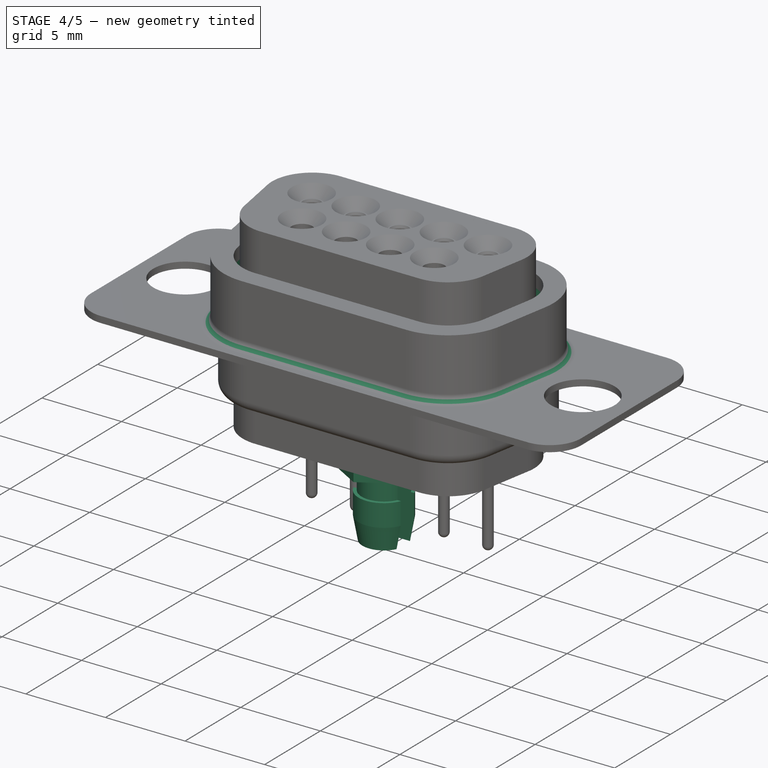
[diagram: stage 4 of 5 — iso view after this stage's code; geometry added in this stage tinted green]
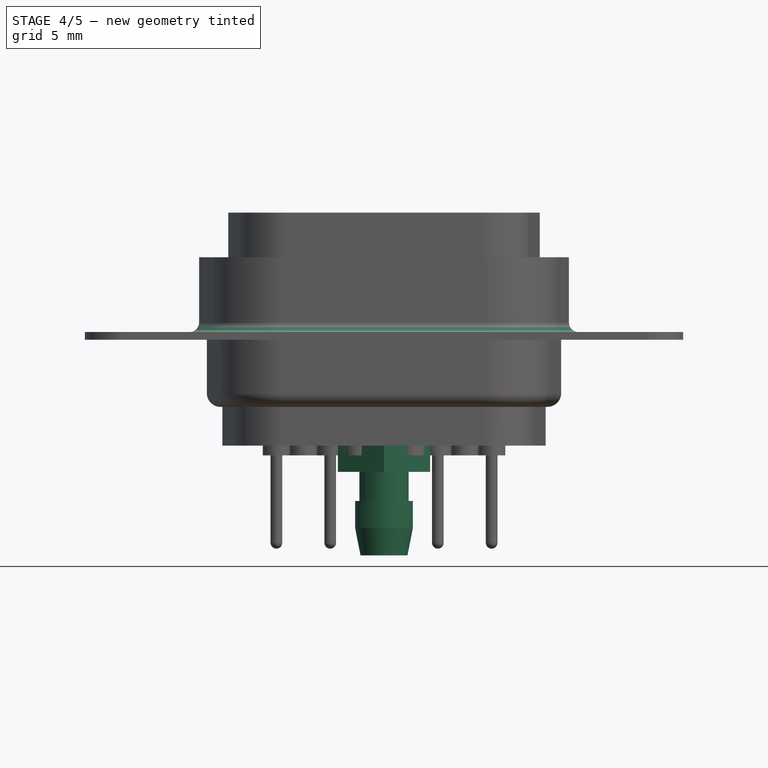
[diagram: stage 4 of 5 — front view after this stage's code; geometry added in this stage tinted green]
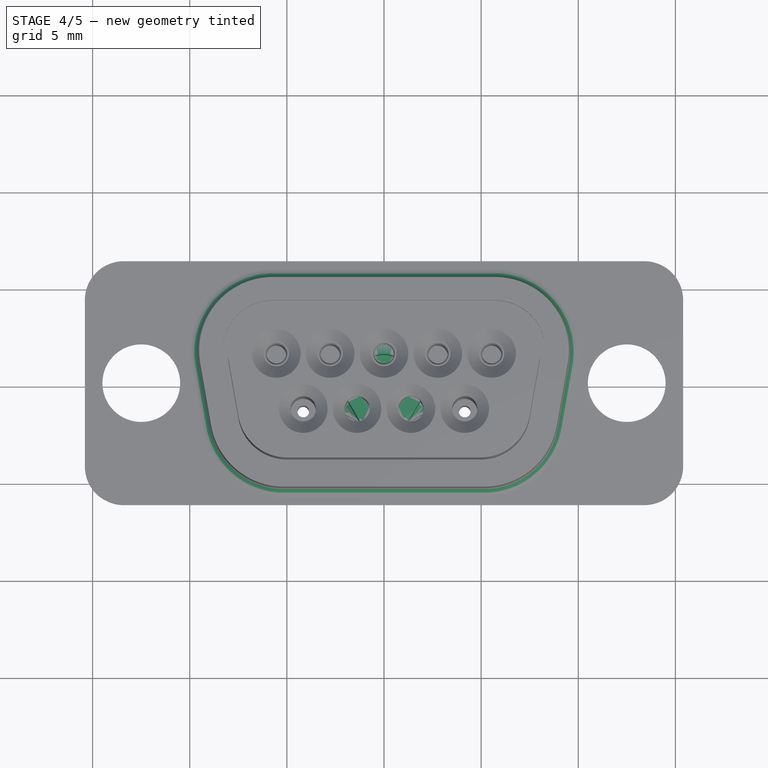
[diagram: stage 4 of 5 — top view after this stage's code; geometry added in this stage tinted green]
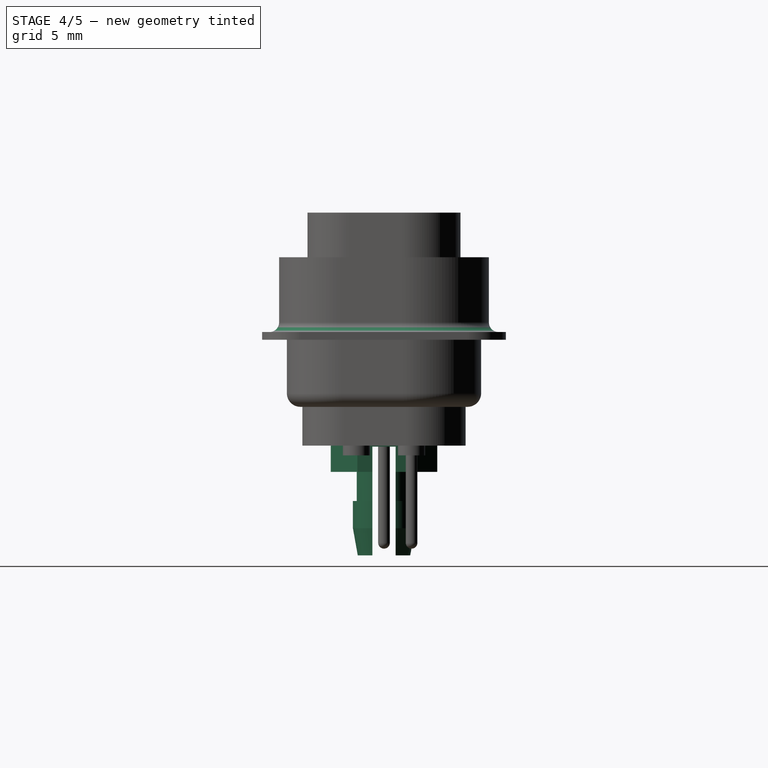
[diagram: stage 4 of 5 — right view after this stage's code; geometry added in this stage tinted green]
FEATURE [Sketcher::SketchObject] Sketch003
  ArcFitTolerance = 0
  AttachmentSupport = -> [Pad001]
  ExternalGeometry = -> [Pad001]
  FullyConstrained = true
  MakeInternals = false
  MapMode = 5
  Placement = pos=(0,0,6.55) rot=(0,0,1;0rad)
  sketch-geometry (8):
    g0: LineSegment StartX=-5.475 StartY=3.535 StartZ=0 EndX=5.475 EndY=3.535 EndZ=0
    g1: LineSegment StartX=7.58744 StartY=1.01766 StartZ=0 EndX=7.09744 EndY=-1.76234 EndZ=0
    g2: LineSegment StartX=4.985 StartY=-3.535 StartZ=0 EndX=-4.985 EndY=-3.535 EndZ=0
    g3: LineSegment StartX=-7.09744 StartY=-1.76234 StartZ=0 EndX=-7.58744 EndY=1.01766 EndZ=0
    g4: ArcOfCircle CenterX=-5.475 CenterY=1.39 CenterZ=0 NormalX=0 NormalY=0 NormalZ=1 AngleXU=0 Radius=2.145 StartAngle=1.5708 EndAngle=3.31606
    g5: ArcOfCircle CenterX=5.475 CenterY=1.39 CenterZ=0 NormalX=0 NormalY=0 NormalZ=1 AngleXU=0 Radius=2.145 StartAngle=6.10872 EndAngle=7.85398
    g6: ArcOfCircle CenterX=4.985 CenterY=-1.39 CenterZ=0 NormalX=0 NormalY=0 NormalZ=1 AngleXU=0 Radius=2.145 StartAngle=4.71239 EndAngle=6.10872
    g7: ArcOfCircle CenterX=-4.985 CenterY=-1.39 CenterZ=0 NormalX=0 NormalY=0 NormalZ=1 AngleXU=0 Radius=2.145 StartAngle=3.31606 EndAngle=4.71239
  constraints (16):
    c: Tangent(g0,g4) = 1.5708
    c: Tangent(g3,g4) = 1.5708
    c: Tangent(g0,g5) = 1.5708
    c: Tangent(g1,g5) = 1.5708
    c: Tangent(g2,g6) = 1.5708
    c: Tangent(g1,g6) = 1.5708
    c: Tangent(g3,g7) = 1.5708
    c: Tangent(g2,g7) = 1.5708
    c: Equal(g4,g7)
    c: Equal(g7,g5)
    c: Equal(g5,g6)
    c: Coincident(g6,g-6)
    c: Coincident(g5,g-5)
    c: Coincident(g4,g-3)
    c: Coincident(g7,g-4)
    c: DistanceY(g0,g-3) = 0.4
FEATURE [PartDesign::Pocket] Pocket001
  BaseFeature = -> Pad001
  Direction = (0,0,-1)
  Length = 5
  Length2 = 5
  Profile = -> Sketch003
  ReferenceAxis = -> Sketch003 [N_Axis]
  Suppressed = false
  Type = 1
FEATURE [Sketcher::SketchObject] Sketch008
  ArcFitTolerance = 0
  AttachmentSupport = -> [Pocket003]
  ExternalGeometry = -> [Pocket003]
  FullyConstrained = true
  MakeInternals = false
  MapMode = 5
  Placement = pos=(0,0,0) rot=(1,0,0;3.14159rad)
  sketch-geometry (8):
    g0: LineSegment StartX=-5.155 StartY=5 StartZ=0 EndX=5.155 EndY=5 EndZ=0
    g1: LineSegment StartX=8.50321 StartY=2.19117 StartZ=0 EndX=9.06821 EndY=-1.00883 EndZ=0
    g2: LineSegment StartX=5.72 StartY=-5 StartZ=0 EndX=-5.72 EndY=-5 EndZ=0
    g3: LineSegment StartX=-9.06821 StartY=-1.00883 StartZ=0 EndX=-8.50321 EndY=2.19117 EndZ=0
    g4: ArcOfCircle CenterX=-5.155 CenterY=1.6 CenterZ=0 NormalX=0 NormalY=0 NormalZ=1 AngleXU=0 Radius=3.4 StartAngle=1.5708 EndAngle=2.96683
    g5: ArcOfCircle CenterX=-5.72 CenterY=-1.6 CenterZ=0 NormalX=0 NormalY=0 NormalZ=1 AngleXU=0 Radius=3.4 StartAngle=2.96683 EndAngle=4.71239
    g6: ArcOfCircle CenterX=5.72 CenterY=-1.6 CenterZ=0 NormalX=0 NormalY=0 NormalZ=1 AngleXU=0 Radius=3.4 StartAngle=4.71239 EndAngle=6.45795
    g7: ArcOfCircle CenterX=5.155 CenterY=1.6 CenterZ=0 NormalX=0 NormalY=0 NormalZ=1 AngleXU=0 Radius=3.4 StartAngle=0.174761 EndAngle=1.5708
  constraints (16):
    c: Tangent(g0,g4) = 1.5708
    c: Tangent(g3,g4) = 1.5708
    c: Tangent(g3,g5) = 1.5708
    c: Tangent(g2,g5) = 1.5708
    c: Tangent(g2,g6) = 1.5708
    c: Tangent(g1,g6) = 1.5708
    c: Tangent(g1,g7) = 1.5708
    c: Tangent(g0,g7) = 1.5708
    c: Coincident(g-3,g4)
    c: Coincident(g5,g-4)
    c: Coincident(g-6,g7)
    c: Coincident(g-5,g6)
    c: Equal(g5,g4)
    c: Equal(g4,g7)
    c: Equal(g7,g6)
    c: DistanceY(g-3,g0) = 0.8
FEATURE [PartDesign::Pocket] Pocket004
  BaseFeature = -> Pocket003
  Direction = (0,0,1)
  Length = 3.45
  Length2 = 5
  Profile = -> Sketch008
  ReferenceAxis = -> Sketch008 [N_Axis]
  Suppressed = false
  Type = 0
FEATURE [PartDesign::Fillet] Fillet003
  Base = -> Pocket004 [Edge58]
  BaseFeature = -> Pocket004
  Radius = 0.7
  SupportTransform = false
  Suppressed = false
  UseAllEdges = false
FEATURE [PartDesign::Fillet] Fillet004
  Base = -> Fillet003 [Edge99]
  BaseFeature = -> Fillet003
  Radius = 0.5
  SupportTransform = false
  Suppressed = false
  UseAllEdges = false
FEATURE [PartDesign::Body] Body001
  AllowCompound = false
  Group = -> [Sketch004,Pad002,Sketch005,Pocket002,Sketch006,Sketch007,Pad003,Pocket003,Sketch008,Pocket004,Fillet003,Fillet004,Fillet005,Fillet006]
  Origin = -> Origin001
  Placement = pos=(0,0,0) rot=(0,1,0;3.14159rad)
  Tip = -> Fillet006
FEATURE [Sketcher::SketchObject] Sketch009
  ArcFitTolerance = 0
  AttachmentSupport = -> [XZ_Plane002]
  FullyConstrained = true
  MakeInternals = false
  MapMode = 5
  Placement = pos=(0,0,0) rot=(1,0,0;1.5708rad)
  sketch-geometry (14):
    g0: LineSegment StartX=1.4224 StartY=0.5 StartZ=0 EndX=1.4224 EndY=-4.17878 EndZ=0
    g1: LineSegment StartX=1.4224 StartY=-4.17878 StartZ=0 EndX=0 EndY=-5 EndZ=0
    g2: LineSegment StartX=0 StartY=-5 StartZ=0 EndX=0 EndY=-11.1 EndZ=0
    g3: LineSegment StartX=0 StartY=-11.1 StartZ=0 EndX=1.35 EndY=-11.1 EndZ=0
    g4: LineSegment StartX=1.35 StartY=-11.1 StartZ=0 EndX=1.6 EndY=-9.7 EndZ=0
    g5: LineSegment StartX=1.6 StartY=-9.7 StartZ=0 EndX=1.6 EndY=-8.3 EndZ=0
    g6: LineSegment StartX=1.6 StartY=-8.3 StartZ=0 EndX=1.4 EndY=-8.3 EndZ=0
    g7: LineSegment StartX=1.4 StartY=-8.3 StartZ=0 EndX=1.4 EndY=-6.8 EndZ=0
    g8: LineSegment StartX=1.4 StartY=-6.8 StartZ=0 EndX=4 EndY=-6.8 EndZ=0
    g9: LineSegment StartX=4 StartY=-6.8 StartZ=0 EndX=4 EndY=-0.8 EndZ=0
    g10: LineSegment StartX=4 StartY=-0.8 StartZ=0 EndX=2 EndY=-0.8 EndZ=0
    g11: LineSegment StartX=2 StartY=-0.8 StartZ=0 EndX=2 EndY=0 EndZ=0
    g12: LineSegment StartX=2 StartY=0 StartZ=0 EndX=2.35 EndY=-9.64e-14 EndZ=0
    g13: ArcOfCircle CenterX=1.4224 CenterY=-0.610442 CenterZ=0 NormalX=0 NormalY=0 NormalZ=1 AngleXU=0 Radius=1.11044 StartAngle=0.582039 EndAngle=1.5708
  constraints (43):
    c: Vertical(g0)
    c: Coincident(g0,g1)
    c: Coincident(g1,g2)
    c: Vertical(g2)
    c: Coincident(g2,g3)
    c: Coincident(g3,g4)
    c: Coincident(g4,g5)
    c: Vertical(g5)
    c: Coincident(g5,g6)
    c: Horizontal(g6)
    c: Coincident(g6,g7)
    c: Vertical(g7)
    c: Coincident(g7,g8)
    c: Coincident(g8,g9)
    c: Vertical(g9)
    c: Coincident(g9,g10)
    c: Horizontal(g10)
    c: Coincident(g10,g11)
    c: PointOnObject(g11,g-1)
    c: Vertical(g11)
    c: Coincident(g11,g12)
    c: PointOnObject(g12,g-1)
    c: Coincident(g13,g12)
    c: Coincident(g13,g0)
    c: PointOnObject(g13,g0)
    c: DistanceX(g-1,g11) = 2
    c: DistanceX(g-1,g0) = 1.4224
    c: DistanceY(g10,g11) = 0.8
    c: Horizontal(g8)
    c: DistanceY(g9,g9) = 6
    c: DistanceY(g3,g9) = 10.3
    c: Horizontal(g3)
    c: DistanceX(g2,g4) = 1.6
    c: PointOnObject(g1,g-2)
    c: DistanceY(g5,g8) = 1.5
    c: DistanceX(g2,g6) = 1.4
    c: DistanceX(g3,g4) = 0.25
    c: DistanceY(g4,g4) = 1.4
    c: DistanceY(g1,g-1) = 5
    c: Angle(g1,g-2) = 1.0472
    c: DistanceX(g12,g12) = 0.35
    c: DistanceY(g11,g0) = 0.5
    c: DistanceX(g-1,g9) = 4
FEATURE [PartDesign::Revolution] Revolution
  Angle = 360
  Angle2 = 60
  Axis = (0,2e-16,1)
  Base = (0,0,0)
  Placement = pos=(0,0,0) rot=(1,0,0;1.5708rad)
  Profile = -> Sketch009
  ReferenceAxis = -> Sketch009 [V_Axis]
  Reversed = true
  Suppressed = false
  Type = 0
FEATURE [Sketcher::SketchObject] Sketch010
  ArcFitTolerance = 0
  AttachmentSupport = -> [Revolution]
  FullyConstrained = false
  MakeInternals = false
  MapMode = 5
  Placement = pos=(0,-2e-16,-0.8) rot=(0,0,1;3.14159rad)
  sketch-geometry (8):
    g0: LineSegment StartX=0 StartY=2.74241 StartZ=0 EndX=-2.375 EndY=1.37121 EndZ=0
    g1: LineSegment StartX=-2.375 StartY=1.37121 StartZ=0 EndX=-2.375 EndY=-1.37121 EndZ=0
    g2: LineSegment StartX=-2.375 StartY=-1.37121 StartZ=0 EndX=-7.545e-13 EndY=-2.74241 EndZ=0
    g3: LineSegment StartX=-7.545e-13 StartY=-2.74241 StartZ=0 EndX=2.375 EndY=-1.37121 EndZ=0
    g4: LineSegment StartX=2.375 StartY=-1.37121 StartZ=0 EndX=2.375 EndY=1.37121 EndZ=0
    g5: LineSegment StartX=2.375 StartY=1.37121 StartZ=0 EndX=0 EndY=2.74241 EndZ=0
    g6: Circle [constr] CenterX=0 CenterY=0 CenterZ=0 NormalX=0 NormalY=0 NormalZ=1 AngleXU=0 Radius=2.74241
    g7: Circle CenterX=0 CenterY=0 CenterZ=0 NormalX=0 NormalY=0 NormalZ=1 AngleXU=0 Radius=4.67961
  constraints (17):
    c: Coincident(g0,g1)
    c: Coincident(g1,g2)
    c: Coincident(g2,g3)
    c: Coincident(g3,g4)
    c: Coincident(g4,g5)
    c: Coincident(g5,g0)
    c: Equal(g0, g1-g5) x5
    c: PointOnObject(g0,g6)
    c: PointOnObject(g1,g6)
    c: PointOnObject(g2,g6)
    c: PointOnObject(g3,g6)
    c: PointOnObject(g4,g6)
    c: PointOnObject(g5,g6)
    c: Coincident(g6,g-1)
    c: PointOnObject(g5,g-2)
    c: DistanceX(g0,g4) = 4.75
    c: Coincident(g7,g6)
FEATURE [PartDesign::Pocket] Pocket005
  BaseFeature = -> Revolution
  Direction = (0,0,-1)
  Length = 5
  Length2 = 5
  Placement = pos=(0,0,0) rot=(1,0,0;1.5708rad)
  Profile = -> Sketch010
  ReferenceAxis = -> Sketch010 [N_Axis]
  Suppressed = false
  Type = 1
FEATURE [Sketcher::SketchObject] Sketch011
  ArcFitTolerance = 0
  AttachmentSupport = -> [YZ_Plane002]
  FullyConstrained = true
  MakeInternals = false
  MapMode = 5
  Placement = pos=(0,0,0) rot=(0.57735,0.57735,0.57735;2.0944rad)
  sketch-geometry (4):
    g0: LineSegment StartX=-0.6 StartY=-5.5 StartZ=0 EndX=0.6 EndY=-5.5 EndZ=0
    g1: LineSegment StartX=0.6 StartY=-5.5 StartZ=0 EndX=0.6 EndY=-11.5 EndZ=0
    g2: LineSegment StartX=0.6 StartY=-11.5 StartZ=0 EndX=-0.6 EndY=-11.5 EndZ=0
    g3: LineSegment StartX=-0.6 StartY=-11.5 StartZ=0 EndX=-0.6 EndY=-5.5 EndZ=0
  constraints (11):
    c: Coincident(g0,g1)
    c: Coincident(g1,g2)
    c: Coincident(g2,g3)
    c: Coincident(g3,g0)
    c: Horizontal(g0)
    c: Vertical(g1)
    c: Vertical(g3)
    c: Symmetric(g1,g2,g-2)
    c: DistanceX(g2,g2) = 1.2
    c: DistanceY(g0,g-1) = 5.5
    c: DistanceY(g3,g3) = 6
FEATURE [PartDesign::Pocket] Pocket006
  BaseFeature = -> Pocket005
  Direction = (-1,0,0)
  Length = 5
  Length2 = 5
  Midplane = true
  Placement = pos=(0,0,0) rot=(1,0,0;1.5708rad)
  Profile = -> Sketch011
  ReferenceAxis = -> Sketch011 [N_Axis]
  Suppressed = false
  Type = 1
FEATURE [PartDesign::Body] Body003
  AllowCompound = false
  BaseFeature = -> Body002
  Group = -> [Clone]
  Origin = -> Origin003
  Placement = pos=(12.495,0,0.4) rot=(0,0,1;0rad)
  Tip = -> Clone
FEATURE [Sketcher::SketchObject] Sketch012
  ArcFitTolerance = 0
  AttachmentSupport = -> [XZ_Plane004]
  FullyConstrained = true
  MakeInternals = false
  MapMode = 5
  Placement = pos=(0,0,0) rot=(1,0,0;1.5708rad)
  sketch-geometry (11):
    g0: LineSegment StartX=1.4224 StartY=5 StartZ=0 EndX=1.4224 EndY=1.82122 EndZ=0
    g1: LineSegment StartX=1.4224 StartY=1.82122 StartZ=0 EndX=0 EndY=1 EndZ=0
    g2: LineSegment StartX=0 StartY=1 StartZ=0 EndX=0 EndY=-3 EndZ=0
    g3: LineSegment StartX=0 StartY=-3 StartZ=0 EndX=0.9224 EndY=-3 EndZ=0
    g4: LineSegment StartX=0.9224 StartY=-3 StartZ=0 EndX=1.4224 EndY=-2.5 EndZ=0
    g5: LineSegment StartX=1.4224 StartY=-2.5 StartZ=0 EndX=1.4224 EndY=0 EndZ=0
    g6: LineSegment StartX=1.4224 StartY=0 StartZ=0 EndX=2.1 EndY=0 EndZ=0
    g7: LineSegment StartX=2.1 StartY=5 StartZ=0 EndX=1.4224 EndY=5 EndZ=0
    g8: LineSegment StartX=2.1 StartY=5 StartZ=0 EndX=3.1 EndY=4.42265 EndZ=0
    g9: LineSegment StartX=3.1 StartY=4.42265 StartZ=0 EndX=3.1 EndY=0.57735 EndZ=0
    g10: LineSegment StartX=3.1 StartY=0.57735 StartZ=0 EndX=2.1 EndY=0 EndZ=0
  constraints (33):
    c: Vertical(g0)
    c: Coincident(g0,g1)
    c: Coincident(g1,g2)
    c: Vertical(g2)
    c: Coincident(g2,g3)
    c: Horizontal(g3)
    c: Coincident(g3,g4)
    c: Coincident(g4,g5)
    c: Vertical(g5)
    c: Coincident(g5,g6)
    c: Horizontal(g6)
    c: Coincident(g7,g0)
    c: PointOnObject(g5,g-1)
    c: Angle(g5,g4) = 2.35619
    c: PointOnObject(g1,g-2)
    c: Angle(g-2,g1) = 2.0944
    c: Vertical(g0,g5)
    c: DistanceX(g2,g4) = 1.4224
    c: Horizontal(g7)
    c: Vertical(g7,g6)
    c: Coincident(g7,g8)
    c: Coincident(g8,g9)
    c: Vertical(g9)
    c: Coincident(g9,g10)
    c: Coincident(g10,g6)
    c: Equal(g8,g10)
    c: Angle(g8,g10) = 1.0472
    c: DistanceX(g-1,g7) = 2.1
    c: DistanceY(g6,g7) = 5
    c: DistanceY(g1,g0) = 4
    c: DistanceX(g8,g8) = 1
    c: DistanceY(g4,g4) = 0.5
    c: DistanceY(g2,g-1) = 3
FEATURE [PartDesign::Revolution] Revolution001
  Angle = 360
  Angle2 = 60
  Axis = (0,2e-16,1)
  Base = (0,0,0)
  Placement = pos=(0,0,0) rot=(1,0,0;1.5708rad)
  Profile = -> Sketch012
  ReferenceAxis = -> Sketch012 [V_Axis]
  Reversed = true
  Suppressed = false
  Type = 0
FEATURE [Sketcher::SketchObject] Sketch013
  ArcFitTolerance = 0
  AttachmentSupport = -> [Revolution001]
  FullyConstrained = false
  MakeInternals = false
  MapMode = 5
  Placement = pos=(0,1.1e-15,5) rot=(0,0,1;3.14159rad)
  sketch-geometry (8):
    g0: LineSegment StartX=2.42487 StartY=0 StartZ=0 EndX=1.21244 EndY=2.1 EndZ=0
    g1: LineSegment StartX=1.21244 StartY=2.1 StartZ=0 EndX=-1.21244 EndY=2.1 EndZ=0
    g2: LineSegment StartX=-1.21244 StartY=2.1 StartZ=0 EndX=-2.42487 EndY=1.847e-12 EndZ=0
    g3: LineSegment StartX=-2.42487 StartY=1.847e-12 StartZ=0 EndX=-1.21244 EndY=-2.1 EndZ=0
    g4: LineSegment StartX=-1.21244 StartY=-2.1 StartZ=0 EndX=1.21244 EndY=-2.1 EndZ=0
    g5: LineSegment StartX=1.21244 StartY=-2.1 StartZ=0 EndX=2.42487 EndY=0 EndZ=0
    g6: Circle [constr] CenterX=0 CenterY=0 CenterZ=0 NormalX=0 NormalY=0 NormalZ=1 AngleXU=0 Radius=2.42487
    g7: Circle CenterX=0 CenterY=0 CenterZ=0 NormalX=0 NormalY=0 NormalZ=1 AngleXU=0 Radius=3.63045
  constraints (17):
    c: Coincident(g0,g1)
    c: Coincident(g1,g2)
    c: Coincident(g2,g3)
    c: Coincident(g3,g4)
    c: Coincident(g4,g5)
    c: Coincident(g5,g0)
    c: Equal(g0, g1-g5) x5
    c: PointOnObject(g0,g6)
    c: PointOnObject(g1,g6)
    c: PointOnObject(g2,g6)
    c: PointOnObject(g3,g6)
    c: PointOnObject(g4,g6)
    c: PointOnObject(g5,g6)
    c: Coincident(g6,g-1)
    c: PointOnObject(g5,g-1)
    c: DistanceY(g4,g0) = 4.2
    c: Coincident(g7,g6)
FEATURE [PartDesign::Pocket] Pocket007
  BaseFeature = -> Revolution001
  Direction = (0,0,-1)
  Length = 5
  Length2 = 5
  Placement = pos=(0,0,0) rot=(1,0,0;1.5708rad)
  Profile = -> Sketch013
  ReferenceAxis = -> Sketch013 [N_Axis]
  Suppressed = false
  Type = 1
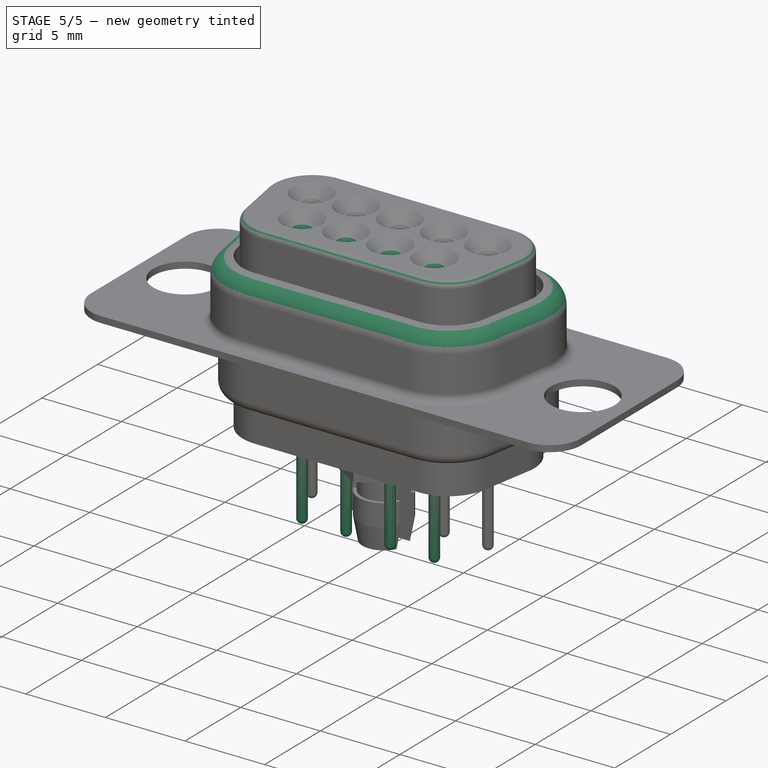
[diagram: stage 5 of 5 — iso view after this stage's code; geometry added in this stage tinted green]
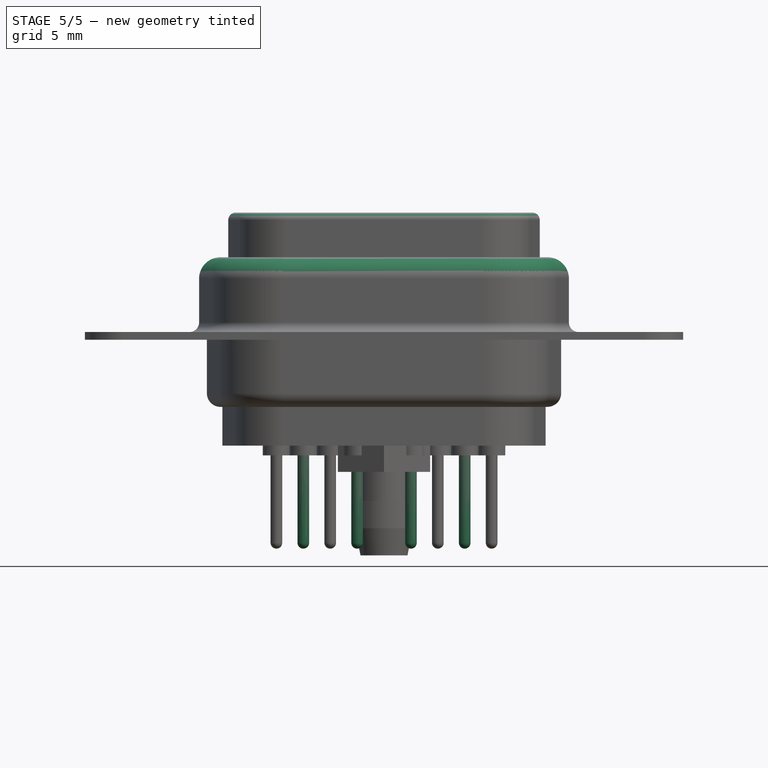
[diagram: stage 5 of 5 — front view after this stage's code; geometry added in this stage tinted green]
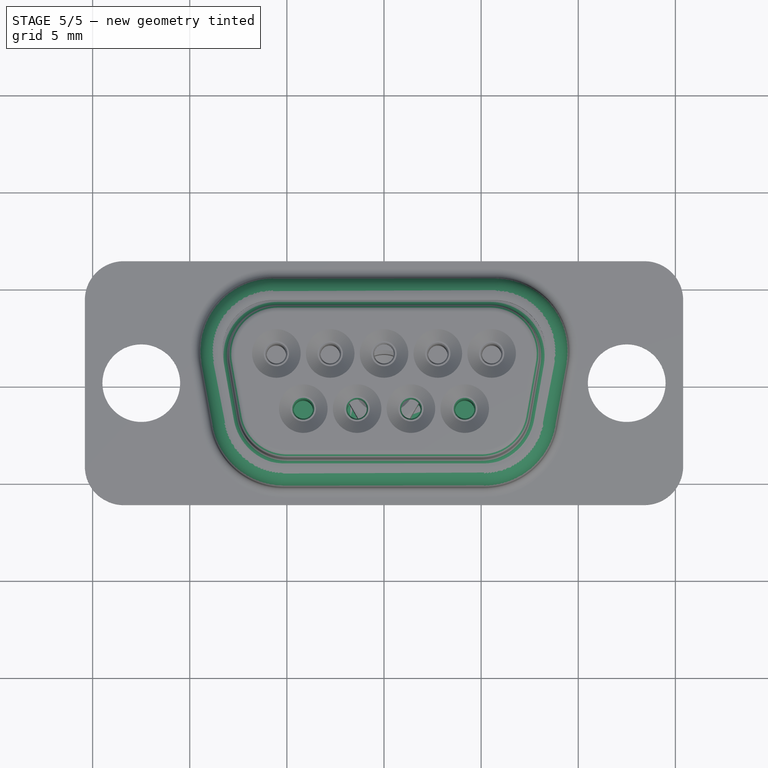
[diagram: stage 5 of 5 — top view after this stage's code; geometry added in this stage tinted green]
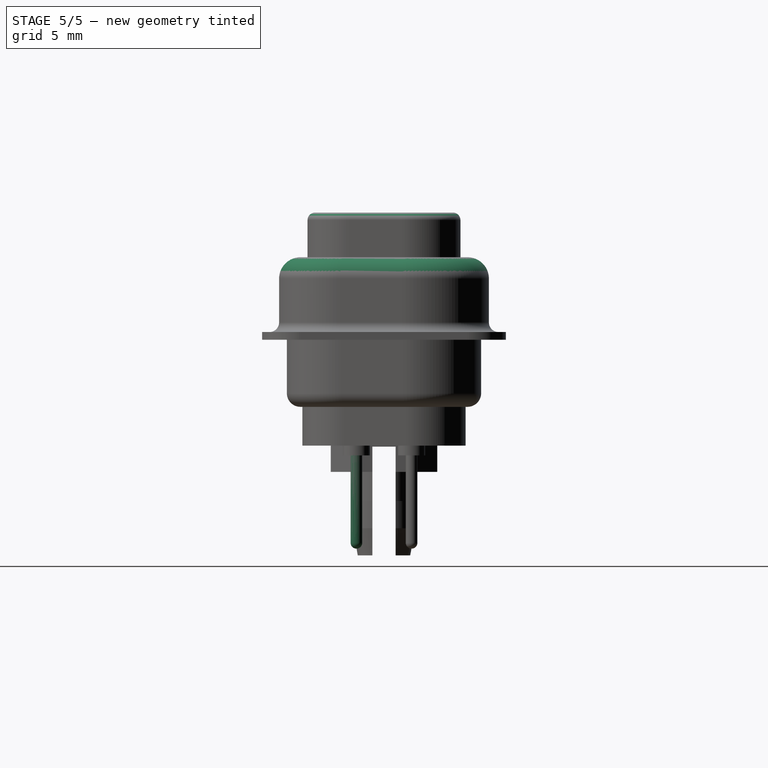
[diagram: stage 5 of 5 — right view after this stage's code; geometry added in this stage tinted green]
FEATURE [PartDesign::Fillet] Fillet
  Base = -> Pocket001 [Edge33]
  BaseFeature = -> Pocket001
  Radius = 0.5
  SupportTransform = false
  Suppressed = false
  UseAllEdges = false
FEATURE [PartDesign::Fillet] Fillet001
  Base = -> Fillet [Edge61]
  BaseFeature = -> Fillet
  Radius = 0.39
  SupportTransform = false
  Suppressed = false
  UseAllEdges = false
FEATURE [PartDesign::Fillet] Fillet002
  Base = -> Fillet001 [Edge80]
  BaseFeature = -> Fillet001
  Radius = 0.9
  SupportTransform = false
  Suppressed = false
  UseAllEdges = false
FEATURE [PartDesign::Fillet] Fillet005
  Base = -> Fillet004 [Edge56]
  BaseFeature = -> Fillet004
  Radius = 1.1
  SupportTransform = false
  Suppressed = false
  UseAllEdges = false
FEATURE [PartDesign::Fillet] Fillet006
  Base = -> Fillet005 [Edge125]
  BaseFeature = -> Fillet005
  Radius = 0.9
  SupportTransform = false
  Suppressed = false
  UseAllEdges = false
FEATURE [PartDesign::Body] Body002
  AllowCompound = false
  Group = -> [Sketch009,Revolution,Sketch010,Pocket005,Sketch011,Pocket006]
  Origin = -> Origin002
  Placement = pos=(-12.495,0,0.4) rot=(0,0,1;0rad)
  Tip = -> Pocket006
FEATURE [PartDesign::FeatureBase] Clone
  BaseFeature = -> Body002
  Suppressed = false
FEATURE [PartDesign::Chamfer] Chamfer
  Angle = 45
  Base = -> Pocket007 [Edge1]
  BaseFeature = -> Pocket007
  ChamferType = 0
  FlipDirection = false
  Placement = pos=(0,0,0) rot=(1,0,0;1.5708rad)
  Size = 0.2
  Size2 = 1
  SupportTransform = false
  Suppressed = false
  UseAllEdges = false
FEATURE [PartDesign::Body] Body004
  AllowCompound = false
  Group = -> [Sketch012,Revolution001,Sketch013,Pocket007,Chamfer]
  Origin = -> Origin004
  Placement = pos=(-12.495,1e-16,0.9) rot=(0,0,1;0rad)
  Tip = -> Chamfer
FEATURE [PartDesign::FeatureBase] Clone001
  BaseFeature = -> Body004
  Suppressed = false
FEATURE [PartDesign::Body] Body010
  AllowCompound = false
  Group = -> [Sketch019,Revolution003]
  Origin = -> Origin010
  Placement = pos=(-4.155,-1.42,0) rot=(0,0,1;0rad)
  Tip = -> Revolution003
FEATURE [Part::FeaturePython] Array002  # Draft array (typed FeaturePython)
  AlwaysSyncPlacement = false
  Angle = 360
  ArrayType = 0
  Axis = (0,0,1)
  Base = -> Body010
  Center = (0,0,0)
  Count = 4
  ExpandArray = false
  Fuse = false
  IntervalAxis = (0,0,0)
  IntervalX = (2.77,0,0)
  IntervalY = (0,100,0)
  IntervalZ = (0,0,100)
  NumberCircles = 3
  NumberPolar = 5
  NumberX = 4
  NumberY = 1
  NumberZ = 1
  PlacementList = 4 placements: arithmetic series from (-4.155,-1.42,0) step (2.77,0,0) to (4.155,-1.42,0)
  RadialDistance = 50
  ScaleList = (4) [(1,1,1),(1,1,1),(1,1,1),(1,1,1)]
  Symmetry = 1
  TangentialDistance = 25
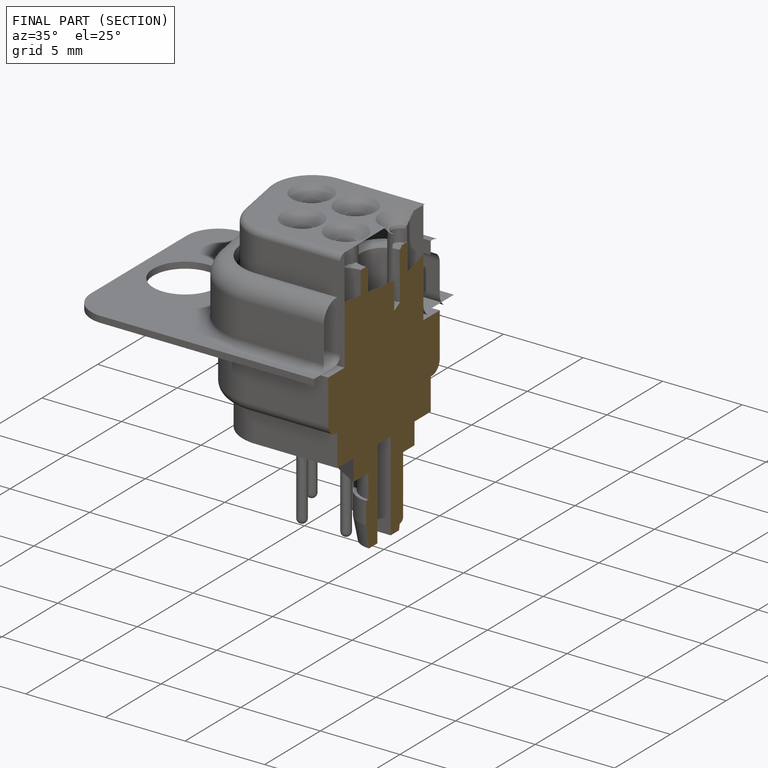
[diagram: finished part — half-section view (interior)]
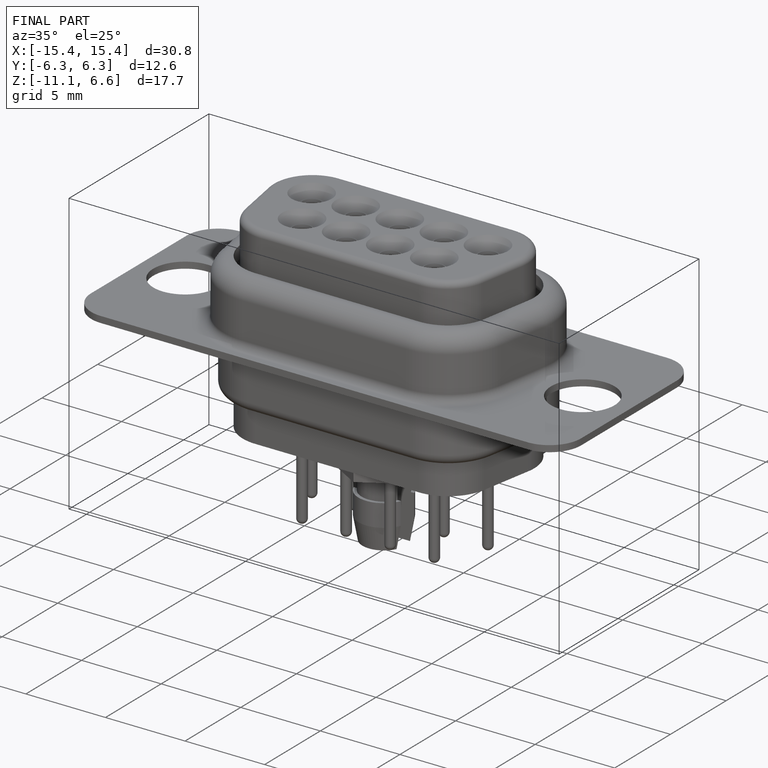
[diagram: finished part — iso view with bounding-box wireframe]
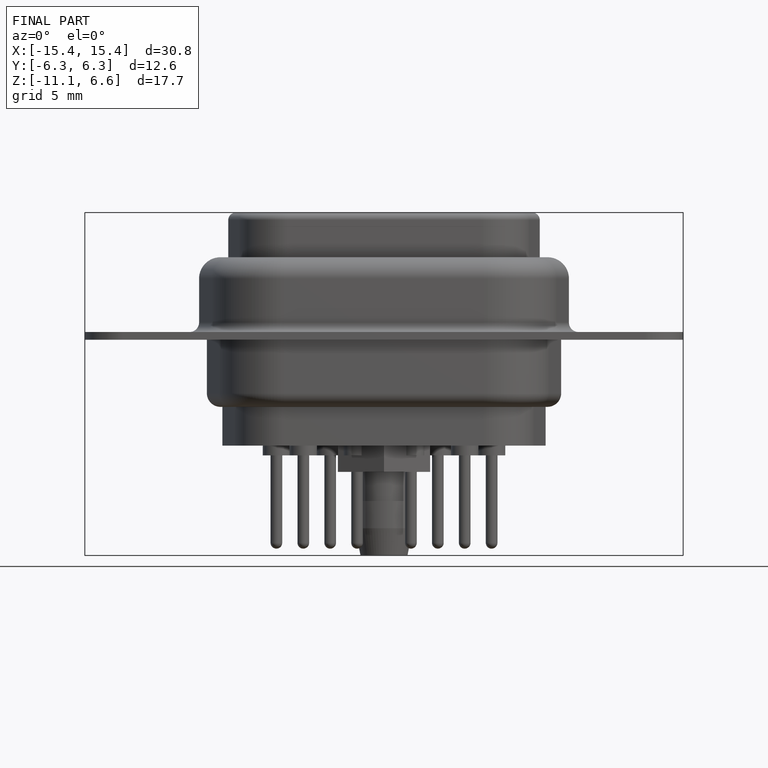
[diagram: finished part — front view with bounding-box wireframe]
